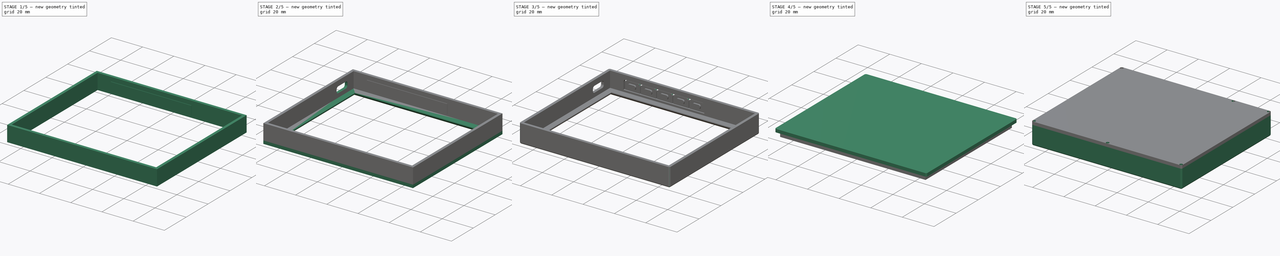
[diagram: build sequence overview — one tinted view per stage of 5, left to right]
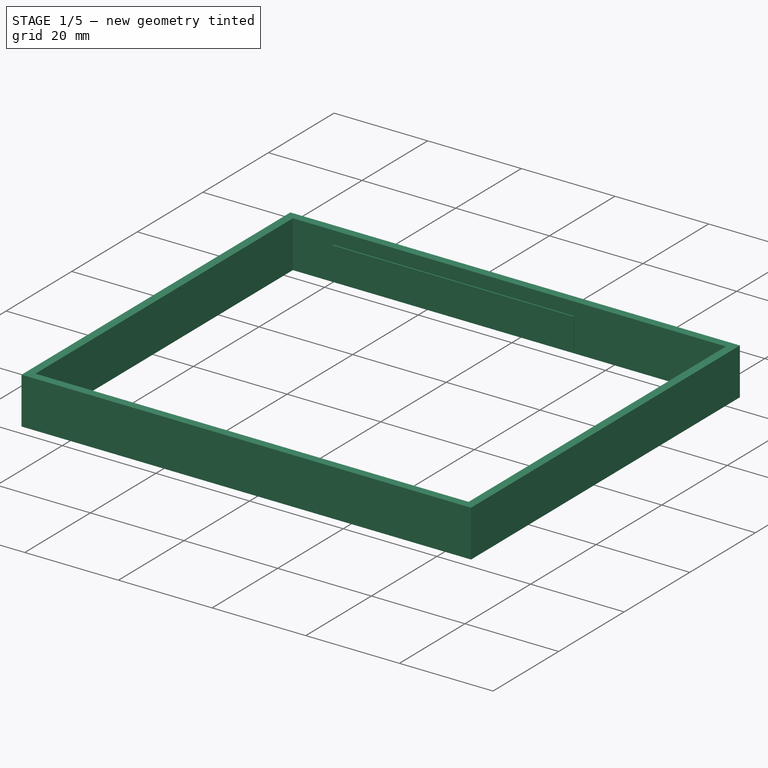
[diagram: stage 1 of 5 — iso view after this stage's code; geometry added in this stage tinted green]
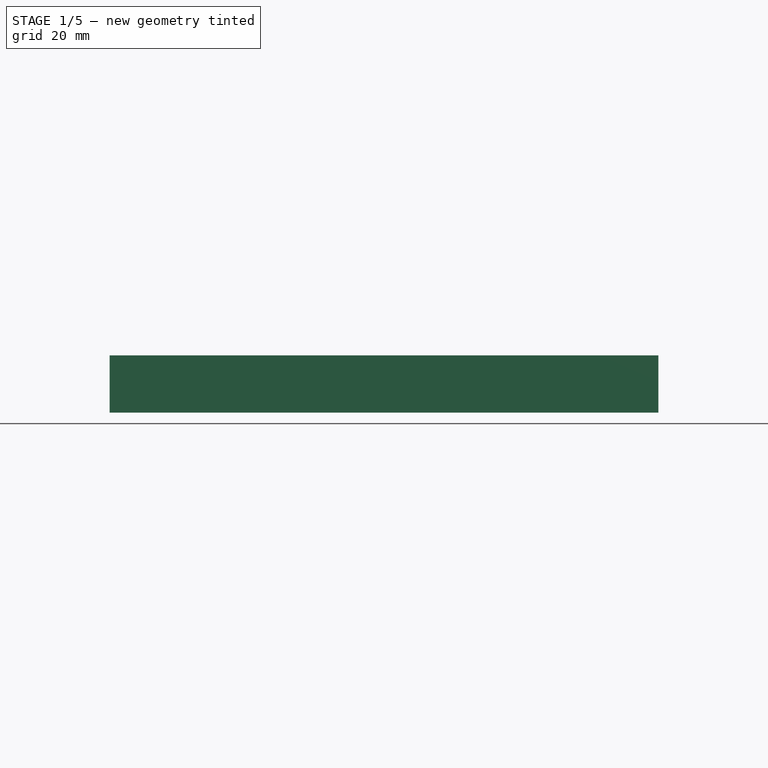
[diagram: stage 1 of 5 — front view after this stage's code; geometry added in this stage tinted green]
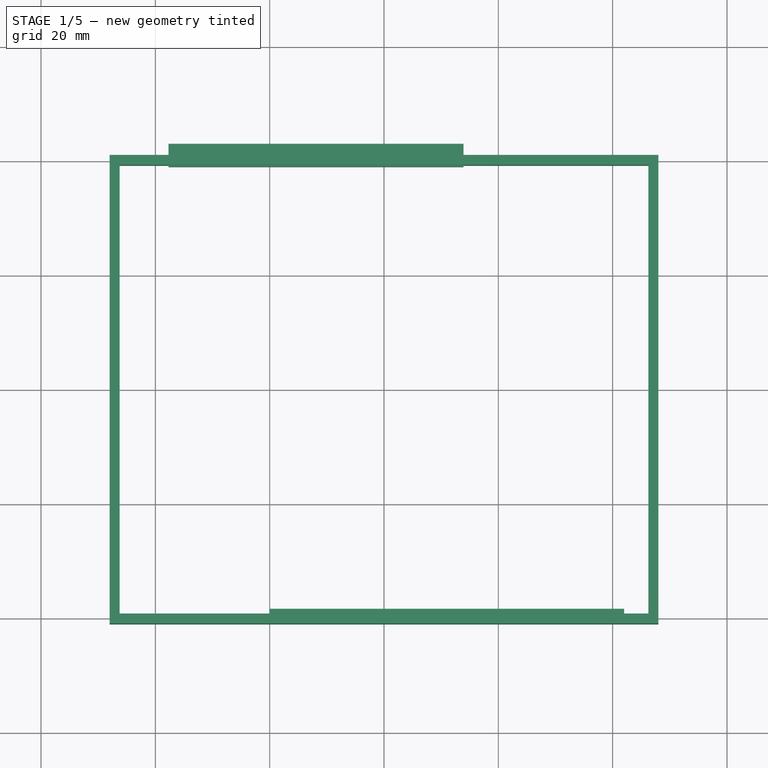
[diagram: stage 1 of 5 — top view after this stage's code; geometry added in this stage tinted green]
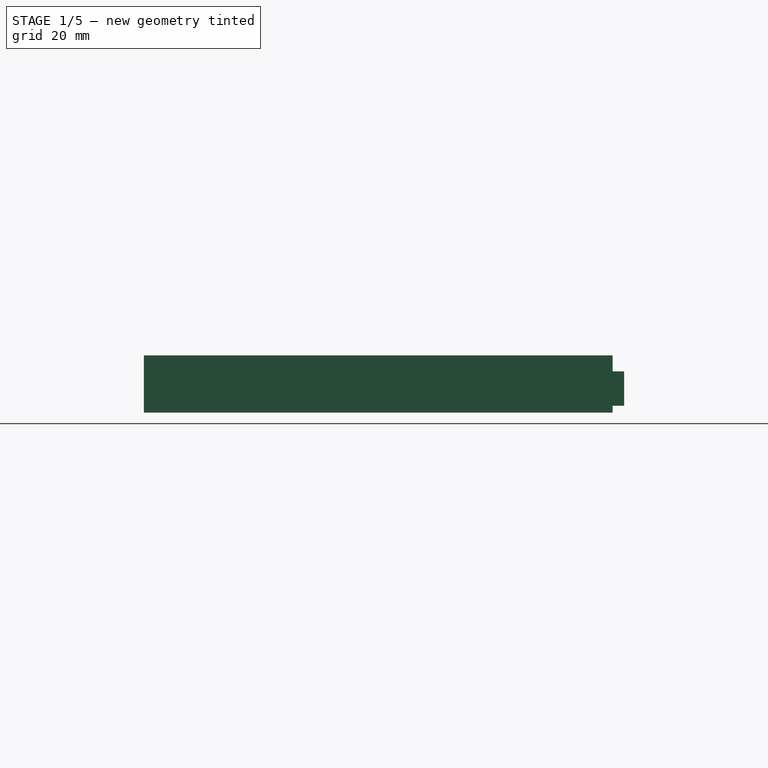
[diagram: stage 1 of 5 — right view after this stage's code; geometry added in this stage tinted green]
FCSTD DOCUMENT  (FreeCAD 0.18R4 (GitTag))
Label: shell
License: All rights reserved
LicenseURL: http://en.wikipedia.org/wiki/All_rights_reserved
objects: Part::Feature×60, App::Part×60, Sketcher::SketchObject×11, Part::Extrusion×11, Part::Cut×6, Part::Fillet×5, Part::MultiFuse×5, Part::Chamfer×1
note: 99 computed .brp shape members not serialized (recipe doc carries the construction recipe); baked Part::Feature solids carry a one-line shape summary decoded from their .brp

FEATURE [Sketcher::SketchObject] Sketch
  sketch-geometry (10):
    g0: LineSegment StartX=-46.25 StartY=39.25 StartZ=0 EndX=46.25 EndY=39.25 EndZ=0
    g1: LineSegment StartX=46.25 StartY=39.25 StartZ=0 EndX=46.25 EndY=-39.25 EndZ=0
    g2: LineSegment StartX=46.25 StartY=-39.25 StartZ=0 EndX=-46.25 EndY=-39.25 EndZ=0
    g3: LineSegment StartX=-46.25 StartY=-39.25 StartZ=0 EndX=-46.25 EndY=39.25 EndZ=0
    g4: LineSegment [constr] StartX=-46.25 StartY=39.25 StartZ=0 EndX=46.25 EndY=-39.25 EndZ=0
    g5: LineSegment [constr] StartX=46.25 StartY=39.25 StartZ=0 EndX=-46.25 EndY=-39.25 EndZ=0
    g6: LineSegment StartX=-48 StartY=41 StartZ=0 EndX=48 EndY=41 EndZ=0
    g7: LineSegment StartX=48 StartY=41 StartZ=0 EndX=48 EndY=-41 EndZ=0
    g8: LineSegment StartX=48 StartY=-41 StartZ=0 EndX=-48 EndY=-41 EndZ=0
    g9: LineSegment StartX=-48 StartY=-41 StartZ=0 EndX=-48 EndY=41 EndZ=0
  constraints (28):
    c: Coincident(g0,g1)
    c: Coincident(g1,g2)
    c: Coincident(g2,g3)
    c: Coincident(g3,g0)
    c: Horizontal(g0)
    c: Horizontal(g2)
    c: Vertical(g1)
    c: Vertical(g3)
    c: Coincident(g4,g0)
    c: Coincident(g4,g1)
    c: Coincident(g5,g0)
    c: Coincident(g5,g2)
    c: PointOnObject(g-1,g4)
    c: PointOnObject(g-1,g5)
    c: Distance(g0) = 92.5
    c: Distance(g3) = 78.5
    c: Coincident(g6,g7)
    c: Coincident(g7,g8)
    c: Coincident(g8,g9)
    c: Coincident(g9,g6)
    c: Horizontal(g6)
    c: Horizontal(g8)
    c: Vertical(g7)
    c: Vertical(g9)
    c: DistanceX(g6,g0) = 1.75
    c: DistanceY(g0,g6) = 1.75
    c: DistanceY(g7,g1) = 1.75
    c: DistanceX(g1,g7) = 1.75
FEATURE [Part::Extrusion] Extrude001  label="side"
  Base = -> Sketch
  Dir = (0,0,1)
  DirMode = 2
  FaceMakerClass = Part::FaceMakerBullseye
  LengthFwd = 10
  LengthRev = 0
  Solid = true
  Symmetric = false
FEATURE [Sketcher::SketchObject] Sketch003
  expr: Constraints[9] = 78 / 2 + 1
  sketch-geometry (4):
    g0: LineSegment StartX=-20 StartY=-38.3 StartZ=0 EndX=42 EndY=-38.3 EndZ=0
    g1: LineSegment StartX=42 StartY=-38.3 StartZ=0 EndX=42 EndY=-40 EndZ=0
    g2: LineSegment StartX=42 StartY=-40 StartZ=0 EndX=-20 EndY=-40 EndZ=0
    g3: LineSegment StartX=-20 StartY=-40 StartZ=0 EndX=-20 EndY=-38.3 EndZ=0
  constraints (12):
    c: Coincident(g0,g1)
    c: Coincident(g1,g2)
    c: Coincident(g2,g3)
    c: Coincident(g3,g0)
    c: Horizontal(g0)
    c: Horizontal(g2)
    c: Vertical(g1)
    c: Vertical(g3)
    c: DistanceY(g0,g-1) = 38.3
    c: DistanceY(g2,g-1) = 40
    c: Distance(g2) = 62
    c: DistanceX(g2,g-1) = 20
FEATURE [Part::Extrusion] Extrude003
  Base = -> Sketch003
  Dir = (0,0,1)
  DirMode = 2
  FaceMakerClass = Part::FaceMakerBullseye
  LengthFwd = 4
  LengthRev = 0
  Solid = true
  Symmetric = false
FEATURE [Sketcher::SketchObject] Sketch004  label="key-out"
  MapMode = 5
  Placement = pos=(0,39,0) rot=(0,0.707107,0.707107;3.14159rad)
  Support = -> [Part__Feature059]
  expr: Constraints[13] = 10.32 * 5
  expr: Constraints[9] = 92 / 2
  sketch-geometry (10):
    g0: LineSegment StartX=-13.9 StartY=7.2 StartZ=0 EndX=37.7 EndY=7.2 EndZ=0
    g1: LineSegment StartX=37.7 StartY=7.2 StartZ=0 EndX=37.7 EndY=1.2 EndZ=0
    g2: LineSegment [constr] StartX=37.7 StartY=1.2 StartZ=0 EndX=-13.9 EndY=1.2 EndZ=0
    g3: LineSegment StartX=-13.9 StartY=1.2 StartZ=0 EndX=-13.9 EndY=7.2 EndZ=0
    g4: GeomPoint X=46 Y=0 Z=0
    g5: LineSegment StartX=-13.9 StartY=1.2 StartZ=0 EndX=-3.58 EndY=1.2 EndZ=0
    g6: LineSegment StartX=-3.58 StartY=1.2 StartZ=0 EndX=6.74 EndY=1.2 EndZ=0
    g7: LineSegment StartX=6.74 StartY=1.2 StartZ=0 EndX=17.06 EndY=1.2 EndZ=0
    g8: LineSegment StartX=17.06 StartY=1.2 StartZ=0 EndX=27.38 EndY=1.2 EndZ=0
    g9: LineSegment StartX=27.38 StartY=1.2 StartZ=0 EndX=37.7 EndY=1.2 EndZ=0
  constraints (28):
    c: Coincident(g0,g1)
    c: Coincident(g1,g2)
    c: Coincident(g2,g3)
    c: Coincident(g3,g0)
    c: Horizontal(g0)
    c: Horizontal(g2)
    c: Vertical(g1)
    c: Vertical(g3)
    c: PointOnObject(g4,g-1)
    c: DistanceX(g-1,g4) = 46
    c: DistanceX(g1,g4) = 8.3
    c: DistanceY(g-1,g2) = 1.2
    c: Distance(g3) = 6
    c: Distance(g0) = 51.6
    c: Parallel(g5,g-1)
    c: Parallel(g6,g-1)
    c: Parallel(g7,g-1)
    c: Parallel(g8,g-1)
    c: Coincident(g5,g6)
    c: Coincident(g6,g7)
    c: Coincident(g7,g8)
    c: Coincident(g8,g9)
    c: Equal(g5,g6)
    c: Equal(g7,g5)
    c: Equal(g8,g5)
    c: Equal(g9,g5)
    c: Coincident(g5,g3)
    c: Coincident(g9,g1)
FEATURE [Sketcher::SketchObject] Sketch005  label="key-out001"
  MapMode = 5
  Placement = pos=(0,39,0) rot=(0,0.707107,0.707107;3.14159rad)
  Support = -> [Part__Feature059]
  expr: Constraints[13] = 10.32 * 5
  expr: Constraints[9] = 92 / 2
  sketch-geometry (31):
    g0: LineSegment StartX=-13.9 StartY=7.2 StartZ=0 EndX=37.7 EndY=7.2 EndZ=0
    g1: LineSegment StartX=37.7 StartY=7.2 StartZ=0 EndX=37.7 EndY=1.2 EndZ=0
    g2: LineSegment [constr] StartX=37.7 StartY=1.2 StartZ=0 EndX=-13.9 EndY=1.2 EndZ=0
    g3: LineSegment StartX=-13.9 StartY=1.2 StartZ=0 EndX=-13.9 EndY=7.2 EndZ=0
    g4: GeomPoint X=46 Y=0 Z=0
    g5: LineSegment [constr] StartX=-13.9 StartY=1.2 StartZ=0 EndX=-3.58 EndY=1.2 EndZ=0
    g6: LineSegment [constr] StartX=-3.58 StartY=1.2 StartZ=0 EndX=6.74 EndY=1.2 EndZ=0
    g7: LineSegment [constr] StartX=6.74 StartY=1.2 StartZ=0 EndX=17.06 EndY=1.2 EndZ=0
    g8: LineSegment [constr] StartX=17.06 StartY=1.2 StartZ=0 EndX=27.38 EndY=1.2 EndZ=0
    g9: LineSegment [constr] StartX=27.38 StartY=1.2 StartZ=0 EndX=37.7 EndY=1.2 EndZ=0
    g10: LineSegment StartX=-3.83 StartY=6.7 StartZ=0 EndX=-3.83 EndY=1.2 EndZ=0
    g11: LineSegment StartX=-3.33 StartY=6.7 StartZ=0 EndX=-3.33 EndY=1.2 EndZ=0
    g12: LineSegment StartX=-13.4 StartY=6.7 StartZ=0 EndX=-13.4 EndY=1.2 EndZ=0
    g13: LineSegment StartX=6.49 StartY=6.7 StartZ=0 EndX=6.49 EndY=1.2 EndZ=0
    g14: LineSegment StartX=6.99 StartY=6.7 StartZ=0 EndX=6.99 EndY=1.2 EndZ=0
    g15: LineSegment StartX=16.81 StartY=6.7 StartZ=0 EndX=16.81 EndY=1.2 EndZ=0
    g16: LineSegment StartX=17.31 StartY=6.7 StartZ=0 EndX=17.31 EndY=1.2 EndZ=0
    g17: LineSegment StartX=27.13 StartY=6.7 StartZ=0 EndX=27.13 EndY=1.2 EndZ=0
    g18: LineSegment StartX=27.63 StartY=6.7 StartZ=0 EndX=27.63 EndY=1.2 EndZ=0
    g19: LineSegment StartX=37.2 StartY=6.7 StartZ=0 EndX=37.2 EndY=1.2 EndZ=0
    g20: LineSegment StartX=-13.9 StartY=1.2 StartZ=0 EndX=-13.4 EndY=1.2 EndZ=0
    g21: LineSegment StartX=-13.4 StartY=6.7 StartZ=0 EndX=-3.83 EndY=6.7 EndZ=0
    g22: LineSegment StartX=-3.83 StartY=1.2 StartZ=0 EndX=-3.33 EndY=1.2 EndZ=0
    g23: LineSegment StartX=-3.33 StartY=6.7 StartZ=0 EndX=6.49 EndY=6.7 EndZ=0
    g24: LineSegment StartX=6.49 StartY=1.2 StartZ=0 EndX=6.99 EndY=1.2 EndZ=0
    g25: LineSegment StartX=6.99 StartY=6.7 StartZ=0 EndX=16.81 EndY=6.7 EndZ=0
    g26: LineSegment StartX=16.81 StartY=1.2 StartZ=0 EndX=17.31 EndY=1.2 EndZ=0
    g27: LineSegment StartX=17.31 StartY=6.7 StartZ=0 EndX=27.13 EndY=6.7 EndZ=0
    g28: LineSegment StartX=27.13 StartY=1.2 StartZ=0 EndX=27.63 EndY=1.2 EndZ=0
    g29: LineSegment StartX=27.63 StartY=6.7 StartZ=0 EndX=37.2 EndY=6.7 EndZ=0
    g30: LineSegment StartX=37.2 StartY=1.2 StartZ=0 EndX=37.7 EndY=1.2 EndZ=0
  constraints (90):
    c: Coincident(g0,g1)
    c: Coincident(g1,g2)
    c: Coincident(g2,g3)
    c: Coincident(g3,g0)
    c: Horizontal(g0)
    c: Horizontal(g2)
    c: Vertical(g1)
    c: Vertical(g3)
    c: PointOnObject(g4,g-1)
    c: DistanceX(g-1,g4) = 46
    c: DistanceX(g1,g4) = 8.3
    c: DistanceY(g-1,g2) = 1.2
    c: Distance(g3) = 6
    c: Distance(g0) = 51.6
    c: Parallel(g5,g-1)
    c: Parallel(g6,g-1)
    c: Parallel(g7,g-1)
    c: Parallel(g8,g-1)
    c: Coincident(g5,g6)
    c: Coincident(g6,g7)
    c: Coincident(g7,g8)
    c: Coincident(g8,g9)
    c: Equal(g5,g6)
    c: Equal(g7,g5)
    c: Equal(g8,g5)
    c: Equal(g9,g5)
    c: Coincident(g5,g3)
    c: Coincident(g9,g1)
    c: Parallel(g10,g-2)
    c: Parallel(g11,g-2)
    c: Parallel(g12,g-2)
    c: Parallel(g13,g-2)
    c: PointOnObject(g10,g5)
    c: PointOnObject(g11,g6)
    c: PointOnObject(g12,g2)
    c: DistanceX(g3,g12) = 0.5
    c: DistanceY(g12,g0) = 0.5
    c: DistanceX(g10,g5) = 0.25
    c: DistanceX(g10,g11) = 0.5
    c: DistanceY(g10,g12) = 0
    c: DistanceY(g11,g12) = 0
    c: PointOnObject(g13,g2)
    c: PointOnObject(g14,g2)
    c: DistanceX(g13,g6) = 0.25
    c: DistanceX(g13,g14) = 0.5
    c: Parallel(g14,g13)
    c: Parallel(g15,g14)
    c: DistanceY(g13,g11) = 0
    c: DistanceY(g14,g13) = 0
    c: Parallel(g16,g15)
    c: PointOnObject(g15,g2)
    c: PointOnObject(g16,g2)
    c: DistanceX(g15,g7) = 0.25
    c: DistanceX(g15,g16) = 0.5
    c: DistanceY(g15,g14) = 0
    c: DistanceY(g16,g15) = 0
    c: Parallel(g17,g1)
    c: Parallel(g18,g1)
    c: Parallel(g19,g1)
    c: PointOnObject(g17,g2)
    c: PointOnObject(g18,g2)
    c: PointOnObject(g19,g2)
    c: DistanceX(g17,g18) = 0.5
    c: DistanceX(g17,g8) = 0.25
    c: DistanceY(g17,g16) = 0
    c: DistanceY(g18,g17) = 0
    c: DistanceX(g19,g1) = 0.5
    c: DistanceY(g19,g0) = 0.5
    c: Coincident(g20,g3)
    c: Coincident(g20,g12)
    c: Coincident(g21,g10)
    c: Coincident(g21,g12)
    c: Coincident(g22,g10)
    c: Coincident(g22,g11)
    c: Coincident(g23,g11)
    c: Coincident(g23,g13)
    c: Coincident(g14,g25)
    c: Coincident(g25,g15)
    c: Coincident(g27,g16)
    c: Coincident(g27,g17)
    c: Coincident(g29,g18)
    c: Coincident(g29,g19)
    c: Coincident(g19,g30)
    c: Coincident(g1,g30)
    c: Coincident(g17,g28)
    c: Coincident(g28,g18)
    c: Coincident(g15,g26)
    c: Coincident(g16,g26)
    c: Coincident(g13,g24)
    c: Coincident(g14,g24)
FEATURE [Part::Extrusion] Extrude004
  Base = -> Sketch004
  Dir = (0,1,-2e-16)
  DirMode = 2
  FaceMakerClass = Part::FaceMakerBullseye
  LengthFwd = 1
  LengthRev = 0
  Solid = true
  Symmetric = false
FEATURE [Sketcher::SketchObject] Sketch006  label="key-out002"
  MapMode = 5
  Placement = pos=(0,39,0) rot=(0,0.707107,0.707107;3.14159rad)
  Support = -> [Part__Feature059]
  expr: Constraints[10] = 10.32 * 5
  expr: Constraints[6] = 92 / 2
  sketch-geometry (29):
    g0: LineSegment [constr] StartX=-13.9 StartY=7.2 StartZ=0 EndX=37.7 EndY=7.2 EndZ=0
    g1: LineSegment [constr] StartX=37.7 StartY=7.2 StartZ=0 EndX=37.7 EndY=1.2 EndZ=0
    g2: LineSegment [constr] StartX=-13.9 StartY=1.2 StartZ=0 EndX=-13.9 EndY=7.2 EndZ=0
    g3: GeomPoint X=46 Y=0 Z=0
    g4: LineSegment [constr] StartX=-13.9 StartY=1.2 StartZ=0 EndX=-3.58 EndY=1.2 EndZ=0
    g5: LineSegment [constr] StartX=-3.58 StartY=1.2 StartZ=0 EndX=6.74 EndY=1.2 EndZ=0
    g6: LineSegment [constr] StartX=6.74 StartY=1.2 StartZ=0 EndX=17.06 EndY=1.2 EndZ=0
    g7: LineSegment [constr] StartX=17.06 StartY=1.2 StartZ=0 EndX=27.38 EndY=1.2 EndZ=0
    g8: LineSegment [constr] StartX=27.38 StartY=1.2 StartZ=0 EndX=37.7 EndY=1.2 EndZ=0
    g9: LineSegment StartX=-11.24 StartY=5.4 StartZ=0 EndX=-6.24 EndY=5.4 EndZ=0
    g10: LineSegment StartX=-6.24 StartY=5.4 StartZ=0 EndX=-6.24 EndY=2.9 EndZ=0
    g11: LineSegment StartX=-6.24 StartY=2.9 StartZ=0 EndX=-11.24 EndY=2.9 EndZ=0
    g12: LineSegment StartX=-11.24 StartY=2.9 StartZ=0 EndX=-11.24 EndY=5.4 EndZ=0
    g13: LineSegment StartX=9.4 StartY=5.4 StartZ=0 EndX=14.4 EndY=5.4 EndZ=0
    g14: LineSegment StartX=14.4 StartY=5.4 StartZ=0 EndX=14.4 EndY=2.9 EndZ=0
    g15: LineSegment StartX=14.4 StartY=2.9 StartZ=0 EndX=9.4 EndY=2.9 EndZ=0
    g16: LineSegment StartX=9.4 StartY=2.9 StartZ=0 EndX=9.4 EndY=5.4 EndZ=0
    g17: LineSegment StartX=19.72 StartY=5.4 StartZ=0 EndX=24.72 EndY=5.4 EndZ=0
    g18: LineSegment StartX=24.72 StartY=5.4 StartZ=0 EndX=24.72 EndY=2.9 EndZ=0
    g19: LineSegment StartX=24.72 StartY=2.9 StartZ=0 EndX=19.72 EndY=2.9 EndZ=0
    g20: LineSegment StartX=19.72 StartY=2.9 StartZ=0 EndX=19.72 EndY=5.4 EndZ=0
    g21: LineSegment StartX=30.04 StartY=5.4 StartZ=0 EndX=35.04 EndY=5.4 EndZ=0
    g22: LineSegment StartX=35.04 StartY=5.4 StartZ=0 EndX=35.04 EndY=2.9 EndZ=0
    g23: LineSegment StartX=35.04 StartY=2.9 StartZ=0 EndX=30.04 EndY=2.9 EndZ=0
    g24: LineSegment StartX=30.04 StartY=2.9 StartZ=0 EndX=30.04 EndY=5.4 EndZ=0
    g25: LineSegment StartX=-0.92 StartY=5.4 StartZ=0 EndX=4.08 EndY=5.4 EndZ=0
    g26: LineSegment StartX=4.08 StartY=5.4 StartZ=0 EndX=4.08 EndY=2.9 EndZ=0
    g27: LineSegment StartX=4.08 StartY=2.9 StartZ=0 EndX=-0.92 EndY=2.9 EndZ=0
    g28: LineSegment StartX=-0.92 StartY=2.9 StartZ=0 EndX=-0.92 EndY=5.4 EndZ=0
  constraints (86):
    c: Coincident(g0,g1)
    c: Coincident(g2,g0)
    c: Horizontal(g0)
    c: Vertical(g1)
    c: Vertical(g2)
    c: PointOnObject(g3,g-1)
    c: DistanceX(g-1,g3) = 46
    c: DistanceX(g1,g3) = 8.3
    c: DistanceY(g-1,g2) = 1.2
    c: Distance(g2) = 6
    c: Distance(g0) = 51.6
    c: Parallel(g4,g-1)
    c: Parallel(g5,g-1)
    c: Parallel(g6,g-1)
    c: Parallel(g7,g-1)
    c: Coincident(g7,g8)
    c: Equal(g4,g5)
    c: Equal(g6,g4)
    c: Equal(g7,g4)
    c: Equal(g8,g4)
    c: Coincident(g4,g2)
    c: Coincident(g8,g1)
    c: Coincident(g6,g7)
    c: Coincident(g5,g6)
    c: Coincident(g5,g4)
    c: Parallel(g8,g-1)
    c: Coincident(g9,g10)
    c: Coincident(g10,g11)
    c: Coincident(g11,g12)
    c: Coincident(g12,g9)
    c: Horizontal(g9)
    c: Horizontal(g11)
    c: Vertical(g10)
    c: Vertical(g12)
    c: Distance(g10) = 2.5
    c: Distance(g9) = 5
    c: Coincident(g13,g14)
    c: Coincident(g14,g15)
    c: Coincident(g15,g16)
    c: Coincident(g16,g13)
    c: Horizontal(g13)
    c: Horizontal(g15)
    c: Vertical(g14)
    c: Vertical(g16)
    c: Equal(g10,g14) = 2.5
    c: Equal(g9,g13) = 5
    c: Coincident(g17,g18)
    c: Coincident(g18,g19)
    c: Coincident(g19,g20)
    c: Coincident(g20,g17)
    c: Horizontal(g17)
    c: Horizontal(g19)
    c: Vertical(g18)
    c: Vertical(g20)
    c: Equal(g10,g18) = 2.5
    c: Equal(g9,g17) = 5
    c: Coincident(g21,g22)
    c: Coincident(g22,g23)
    c: Coincident(g23,g24)
    c: Coincident(g24,g21)
    c: Horizontal(g21)
    c: Horizontal(g23)
    c: Vertical(g22)
    c: Vertical(g24)
    c: Equal(g10,g22) = 2.5
    c: Equal(g9,g21) = 5
    c: Coincident(g25,g26)
    c: Coincident(g26,g27)
    c: Coincident(g27,g28)
    c: Coincident(g28,g25)
    c: Horizontal(g25)
    c: Horizontal(g27)
    c: Vertical(g26)
    c: Vertical(g28)
    c: Equal(g10,g26) = 2.5
    c: Equal(g9,g25) = 5
    c: DistanceY(g2,g11) = 1.7
    c: DistanceY(g4,g27) = 1.7
    c: DistanceY(g5,g15) = 1.7
    c: DistanceY(g6,g19) = 1.7
    c: DistanceY(g7,g23) = 1.7
    c: DistanceX(g2,g11) = 2.66
    c: DistanceX(g4,g27) = 2.66
    c: DistanceX(g5,g15) = 2.66
    c: DistanceX(g6,g19) = 2.66
    c: DistanceX(g7,g23) = 2.66
FEATURE [Part::Extrusion] Extrude005
  Base = -> Sketch005
  Dir = (0,1,-2e-16)
  DirMode = 2
  FaceMakerClass = Part::FaceMakerBullseye
  LengthFwd = 4
  LengthRev = 0
  Solid = true
  Symmetric = false
FEATURE [Part::Extrusion] Extrude007  label="keys"
  Base = -> Sketch006
  Dir = (0,1,-2e-16)
  DirMode = 2
  FaceMakerClass = Part::FaceMakerBullseye
  LengthFwd = 3
  LengthRev = 0
  Solid = true
  Symmetric = false
FEATURE [Part::Fillet] Fillet003
  Base = -> Extrude007
  Edges = 40 edges r=1: [Edge1,Edge2,Edge4,Edge5,Edge7,Edge8,Edge10,Edge12,Edge13,Edge14,Edge16,Edge17,Edge19,Edge20,Edge22,Edge24,Edge25,Edge26,Edge28,Edge29,Edge31,Edge32,Edge34,Edge36,Edge37,Edge38,Edge40,Edge41,Edge43,Edge44,Edge46,Edge48,Edge49,Edge50,Edge52,Edge53,Edge55,Edge56,Edge58,Edge60]
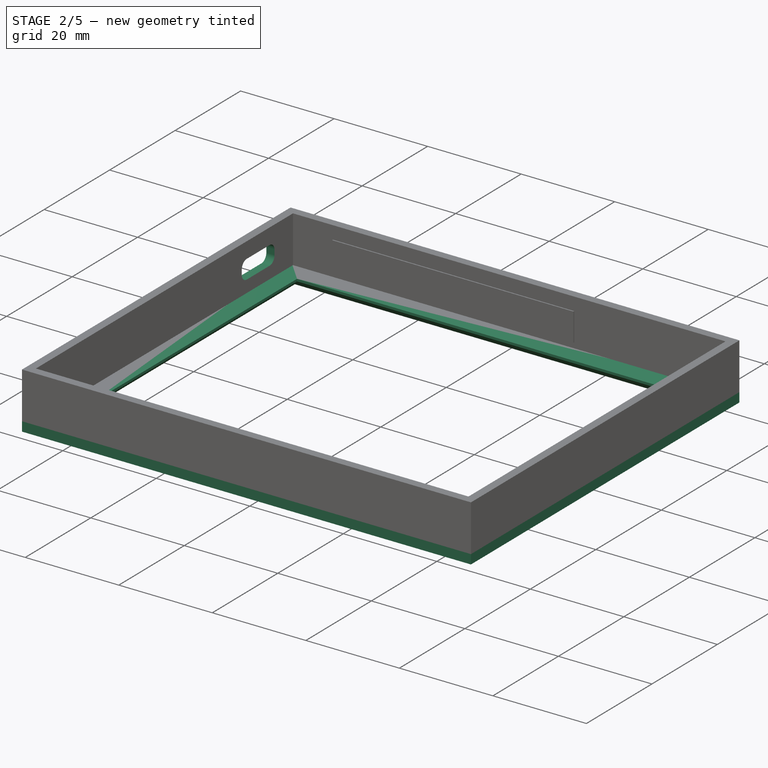
[diagram: stage 2 of 5 — iso view after this stage's code; geometry added in this stage tinted green]
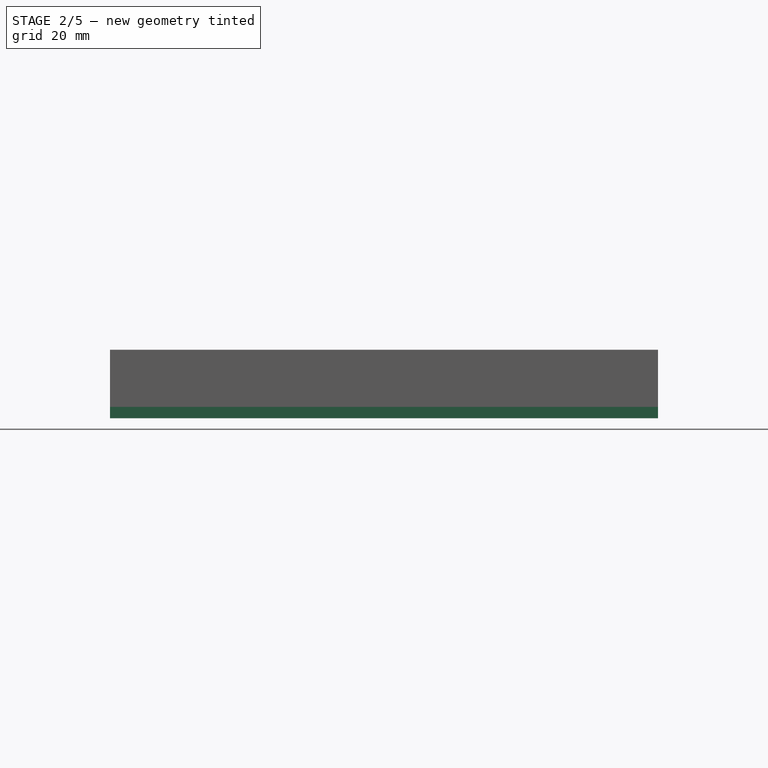
[diagram: stage 2 of 5 — front view after this stage's code; geometry added in this stage tinted green]
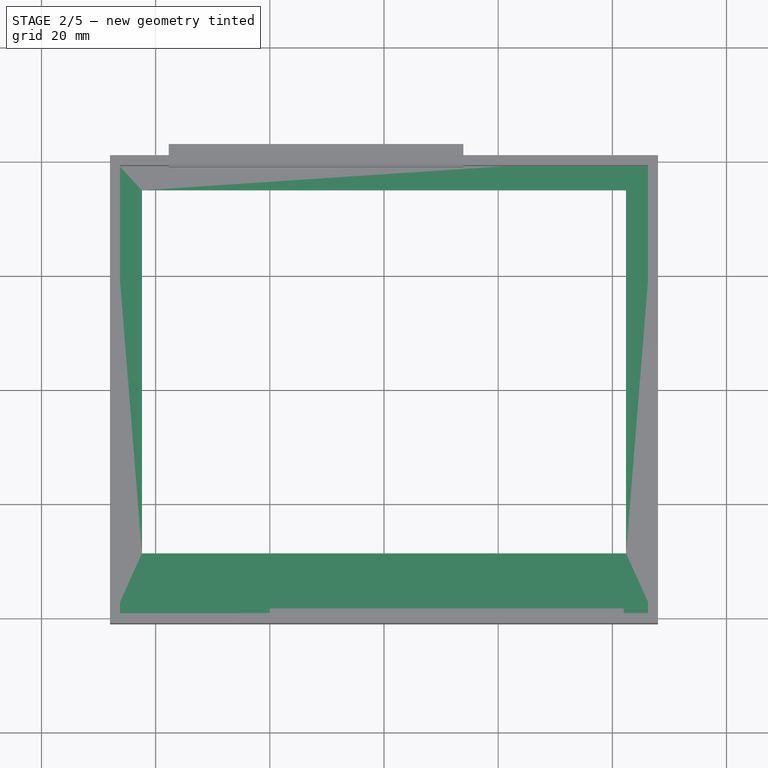
[diagram: stage 2 of 5 — top view after this stage's code; geometry added in this stage tinted green]
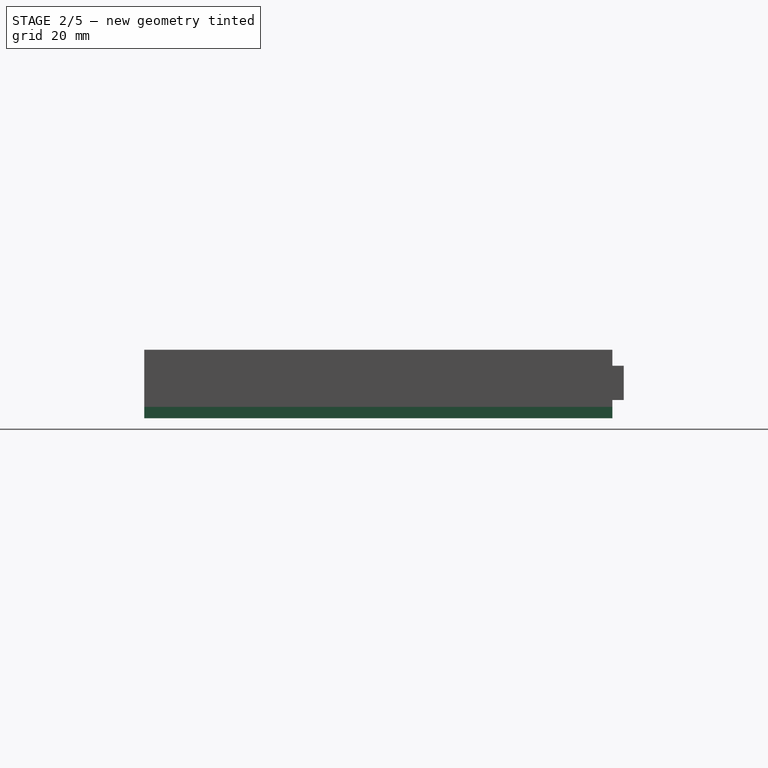
[diagram: stage 2 of 5 — right view after this stage's code; geometry added in this stage tinted green]
FEATURE [Part::Feature] Part__Feature  label="SOLID"
  shape: bbox 2.8 x 2.9 x 1.55 mm, 109 faces (baked)
FEATURE [App::Part] SOT_23_5  label="SOT-23-5"
  Group = -> [Part__Feature]
  Origin = -> Origin
  Placement = pos=(-34.2,20.25,1.65) rot=(0,0,1;3.14159rad)
FEATURE [Part::Feature] Part__Feature001  label="SOLID001"
  shape: bbox 2.8 x 2.9 x 1.55 mm, 124 faces (baked)
FEATURE [App::Part] SOT_23_6  label="SOT-23-6"
  Group = -> [Part__Feature001]
  Origin = -> Origin001
  Placement = pos=(-23.05,12,1.65) rot=(0,0,1;0rad)
FEATURE [Part::Feature] Part__Feature002  label="SOLID002"
  shape: bbox 1 x 0.5 x 0.35 mm, 26 faces (baked)
FEATURE [App::Part] R_0402_1005Metric
  Group = -> [Part__Feature002]
  Origin = -> Origin002
  Placement = pos=(40.585,34.875,1.65) rot=(0,0,1;0rad)
FEATURE [Part::Feature] Part__Feature003  label="SOLID003"
  shape: bbox 1 x 0.5 x 0.35 mm, 26 faces (baked)
FEATURE [App::Part] R_0402_1005Metric001
  Group = -> [Part__Feature003]
  Origin = -> Origin003
  Placement = pos=(-35.79,17.5,1.65) rot=(0,0,1;3.14159rad)
FEATURE [Part::Feature] Part__Feature004  label="SOLID004"
  shape: bbox 1 x 0.5 x 0.35 mm, 26 faces (baked)
FEATURE [App::Part] R_0402_1005Metric002
  Group = -> [Part__Feature004]
  Origin = -> Origin004
  Placement = pos=(33.89,36.875,1.65) rot=(0,0,1;0rad)
FEATURE [Part::Feature] Part__Feature005  label="SOLID005"
  shape: bbox 1 x 0.5 x 0.35 mm, 26 faces (baked)
FEATURE [App::Part] R_0402_1005Metric003
  Group = -> [Part__Feature005]
  Origin = -> Origin005
  Placement = pos=(32.565,34.875,1.65) rot=(0,0,1;0rad)
FEATURE [Part::Feature] Part__Feature006  label="SOLID006"
  shape: bbox 1 x 0.5 x 0.35 mm, 26 faces (baked)
FEATURE [App::Part] R_0402_1005Metric004
  Group = -> [Part__Feature006]
  Origin = -> Origin006
  Placement = pos=(38.575,-14.335,1.65) rot=(0,0,1;1.5708rad)
FEATURE [Part::Feature] Part__Feature007  label="SOLID007"
  shape: bbox 1 x 0.5 x 0.35 mm, 26 faces (baked)
FEATURE [App::Part] R_0402_1005Metric005
  Group = -> [Part__Feature007]
  Origin = -> Origin007
  Placement = pos=(41.915,-16.5,1.65) rot=(0,0,1;0rad)
FEATURE [Part::Feature] Part__Feature008  label="SOLID008"
  shape: bbox 1 x 0.5 x 0.35 mm, 26 faces (baked)
FEATURE [App::Part] R_0402_1005Metric006
  Group = -> [Part__Feature008]
  Origin = -> Origin008
  Placement = pos=(-25.26,8.55,1.65) rot=(0,0,1;3.14159rad)
FEATURE [Part::Feature] Part__Feature009  label="SOLID009"
  shape: bbox 1 x 0.5 x 0.35 mm, 26 faces (baked)
FEATURE [App::Part] R_0402_1005Metric007
  Group = -> [Part__Feature009]
  Origin = -> Origin009
  Placement = pos=(-35.6,26.3,1.65) rot=(0,0,1;1.5708rad)
FEATURE [Part::Feature] Part__Feature010  label="SOLID010"
  shape: bbox 1 x 0.5 x 0.35 mm, 26 faces (baked)
FEATURE [App::Part] R_0402_1005Metric008
  Group = -> [Part__Feature010]
  Origin = -> Origin010
  Placement = pos=(-35.65,30.4,1.65) rot=(0,0,-1;1.5708rad)
FEATURE [Part::Feature] Part__Feature011  label="SOLID011"
  shape: bbox 1 x 0.5 x 0.35 mm, 26 faces (baked)
FEATURE [App::Part] R_0402_1005Metric009
  Group = -> [Part__Feature011]
  Origin = -> Origin011
  Placement = pos=(-25.235,4.875,1.65) rot=(0,0,1;0rad)
FEATURE [Part::Feature] Part__Feature012  label="SOLID012"
  shape: bbox 1 x 0.5 x 0.35 mm, 26 faces (baked)
FEATURE [App::Part] R_0402_1005Metric010
  Group = -> [Part__Feature012]
  Origin = -> Origin012
  Placement = pos=(-25.24,6.15,1.65) rot=(0,0,1;0rad)
FEATURE [Part::Feature] Part__Feature013  label="SOLID013"
  shape: bbox 1 x 0.5 x 0.35 mm, 26 faces (baked)
FEATURE [App::Part] R_0402_1005Metric011
  Group = -> [Part__Feature013]
  Origin = -> Origin013
  Placement = pos=(-25.24,7.4,1.65) rot=(0,0,1;0rad)
FEATURE [Part::Feature] Part__Feature014  label="SOLID014"
  shape: bbox 1 x 0.5 x 0.35 mm, 26 faces (baked)
FEATURE [App::Part] R_0402_1005Metric012
  Group = -> [Part__Feature014]
  Origin = -> Origin014
  Placement = pos=(-25.19,3.6,1.65) rot=(0,0,1;3.14159rad)
FEATURE [Part::Feature] Part__Feature015  label="SOLID015"
  shape: bbox 2.5 x 3 x 1.2 mm, 76 faces (baked)
FEATURE [App::Part] SOT_23  label="SOT-23"
  Group = -> [Part__Feature015]
  Origin = -> Origin015
  Placement = pos=(36.725,35.875,1.65) rot=(0,0,1;1.5708rad)
FEATURE [Part::Feature] Part__Feature016  label="SOLID016"
  shape: bbox 2 x 2 x 1.05 mm, 76 faces (baked)
FEATURE [App::Part] SOT_323_SC_70  label="SOT-323_SC-70"
  Group = -> [Part__Feature016]
  Origin = -> Origin016
  Placement = pos=(39.225,-17.55,1.65) rot=(0,0,-1;1.5708rad)
FEATURE [Part::Feature] Part__Feature017  label="COMPOUND"
  shape: bbox 4.041 x 4.111 x 1.805 mm, 136 faces, 5 solids (baked)
FEATURE [App::Part] L_Bourns_SRN4018  label="L_Bourns-SRN4018"
  Group = -> [Part__Feature017]
  Origin = -> Origin017
  Placement = pos=(37.7,-22.175,1.65) rot=(0,0,1;0rad)
FEATURE [Part::Feature] Part__Feature018  label="SOLID017"
  shape: bbox 1 x 0.5 x 0.35 mm, 26 faces (baked)
FEATURE [App::Part] R_0402_1005Metric013
  Group = -> [Part__Feature018]
  Origin = -> Origin018
  Placement = pos=(19.13,2.71,1.65) rot=(0,0,-1;1.5708rad)
FEATURE [Part::Feature] Part__Feature019  label="SOLID018"
  shape: bbox 1 x 0.5 x 0.35 mm, 26 faces (baked)
FEATURE [App::Part] R_0402_1005Metric014
  Group = -> [Part__Feature019]
  Origin = -> Origin019
  Placement = pos=(20.1,2.71,1.65) rot=(0,0,-1;1.5708rad)
FEATURE [Part::Feature] Part__Feature020  label="SOLID019"
  shape: bbox 1 x 0.5 x 0.35 mm, 26 faces (baked)
FEATURE [App::Part] R_0402_1005Metric015
  Group = -> [Part__Feature020]
  Origin = -> Origin020
  Placement = pos=(-30.55,-8.35,1.65) rot=(0,0,1;3.14159rad)
FEATURE [Part::Feature] Part__Feature021  label="SOLID020"
  shape: bbox 1 x 0.5 x 0.35 mm, 26 faces (baked)
FEATURE [App::Part] R_0402_1005Metric016
  Group = -> [Part__Feature021]
  Origin = -> Origin021
  Placement = pos=(-30.55,-9.55,1.65) rot=(0,0,1;3.14159rad)
FEATURE [Part::Feature] Part__Feature022  label="SOLID021"
  shape: bbox 8.94 x 7.63 x 4.25 mm, 136 faces (baked)
FEATURE [App::Part] USB_C_Receptacle_Palconn_UTC16_G  label="USB_C_Receptacle_Palconn_UTC16-G"
  Group = -> [Part__Feature022]
  Origin = -> Origin022
  Placement = pos=(-42.05,28.6,1.65) rot=(0,0,-1;1.5708rad)
FEATURE [Part::Feature] Part__Feature023  label="SOLID022"
  shape: bbox 1 x 0.5 x 0.5 mm, 50 faces (baked)
FEATURE [App::Part] LED_0402_1005Metric
  Group = -> [Part__Feature023]
  Origin = -> Origin023
  Placement = pos=(31.885,36.875,1.65) rot=(0,0,1;3.14159rad)
FEATURE [Part::Feature] Part__Feature024  label="SOLID023"
  shape: bbox 2.5 x 1.25 x 1.1 mm, 67 faces (baked)
FEATURE [App::Part] D_SOD_323  label="D_SOD-323"
  Group = -> [Part__Feature024]
  Origin = -> Origin024
  Placement = pos=(24.15,-16.35,1.65) rot=(0,0,1;1.5708rad)
FEATURE [Part::Feature] Part__Feature025  label="SOLID024"
  shape: bbox 3.8 x 1.6 x 1.25 mm, 67 faces (baked)
FEATURE [App::Part] D_SOD_123  label="D_SOD-123"
  Group = -> [Part__Feature025]
  Origin = -> Origin025
  Placement = pos=(34.2,-18.55,1.65) rot=(0,0,1;0rad)
FEATURE [Part::Feature] Part__Feature026  label="SOLID025"
  shape: bbox 3.8 x 1.6 x 1.25 mm, 67 faces (baked)
FEATURE [App::Part] D_SOD_123001  label="D_SOD-324"
  Group = -> [Part__Feature026]
  Origin = -> Origin026
  Placement = pos=(42.275,-22.175,1.65) rot=(0,0,1;1.5708rad)
FEATURE [Part::Feature] Part__Feature027  label="SOLID026"
  shape: bbox 3.8 x 1.6 x 1.25 mm, 67 faces (baked)
FEATURE [App::Part] D_SOD_123002  label="D_SOD-325"
  Group = -> [Part__Feature027]
  Origin = -> Origin027
  Placement = pos=(34.2,-16.1,1.65) rot=(0,0,1;3.14159rad)
FEATURE [Part::Feature] Part__Feature028  label="SOLID027"
  shape: bbox 2.5 x 1.25 x 1.1 mm, 67 faces (baked)
FEATURE [App::Part] D_SOD_323001  label="D_SOD-326"
  Group = -> [Part__Feature028]
  Origin = -> Origin028
  Placement = pos=(-28.75,19.3,1.65) rot=(0,0,1;0rad)
FEATURE [Part::Feature] Part__Feature029  label="SOLID028"
  shape: bbox 1 x 0.5 x 0.5 mm, 28 faces (baked)
FEATURE [App::Part] C_0402_1005Metric
  Group = -> [Part__Feature029]
  Origin = -> Origin029
  Placement = pos=(26.15,-17,1.65) rot=(0,0,-1;1.5708rad)
FEATURE [Part::Feature] Part__Feature030  label="SOLID029"
  shape: bbox 1 x 0.5 x 0.5 mm, 28 faces (baked)
FEATURE [App::Part] C_0402_1005Metric001
  Group = -> [Part__Feature030]
  Origin = -> Origin030
  Placement = pos=(16.575,-16.97,1.65) rot=(0,0,-1;1.5708rad)
FEATURE [Part::Feature] Part__Feature031  label="SOLID030"
  shape: bbox 1 x 0.5 x 0.5 mm, 28 faces (baked)
FEATURE [App::Part] C_0402_1005Metric002
  Group = -> [Part__Feature031]
  Origin = -> Origin031
  Placement = pos=(17.65,-16.97,1.65) rot=(0,0,-1;1.5708rad)
FEATURE [Part::Feature] Part__Feature032  label="SOLID031"
  shape: bbox 1 x 0.5 x 0.5 mm, 28 faces (baked)
FEATURE [App::Part] C_0402_1005Metric003
  Group = -> [Part__Feature032]
  Origin = -> Origin032
  Placement = pos=(19.15,-14.97,1.65) rot=(0,0,-1;1.5708rad)
FEATURE [Part::Feature] Part__Feature033  label="SOLID032"
  shape: bbox 1 x 0.5 x 0.5 mm, 28 faces (baked)
FEATURE [App::Part] C_0402_1005Metric004
  Group = -> [Part__Feature033]
  Origin = -> Origin033
  Placement = pos=(26.65,-15.095,1.65) rot=(0,0,-1;1.5708rad)
FEATURE [Part::Feature] Part__Feature034  label="SOLID033"
  shape: bbox 1 x 0.5 x 0.5 mm, 28 faces (baked)
FEATURE [App::Part] C_0402_1005Metric005
  Group = -> [Part__Feature034]
  Origin = -> Origin034
  Placement = pos=(19.725,-16.97,1.65) rot=(0,0,-1;1.5708rad)
FEATURE [Part::Feature] Part__Feature035  label="SOLID034"
  shape: bbox 1 x 0.5 x 0.5 mm, 28 faces (baked)
FEATURE [App::Part] C_0402_1005Metric006
  Group = -> [Part__Feature035]
  Origin = -> Origin035
  Placement = pos=(20.67,-18.75,1.65) rot=(0,0,1;0rad)
FEATURE [Part::Feature] Part__Feature036  label="SOLID035"
  shape: bbox 1.6 x 0.8 x 0.8 mm, 28 faces (baked)
FEATURE [App::Part] C_0603_1608Metric
  Group = -> [Part__Feature036]
  Origin = -> Origin036
  Placement = pos=(24.7,35.7,1.65) rot=(0,0,1;1.5708rad)
FEATURE [Part::Feature] Part__Feature037  label="SOLID036"
  shape: bbox 1.6 x 0.8 x 0.8 mm, 28 faces (baked)
FEATURE [App::Part] C_0603_1608Metric001
  Group = -> [Part__Feature037]
  Origin = -> Origin037
  Placement = pos=(26.3,35.725,1.65) rot=(0,0,1;1.5708rad)
FEATURE [Part::Feature] Part__Feature038  label="SOLID037"
  shape: bbox 1 x 0.5 x 0.5 mm, 28 faces (baked)
FEATURE [App::Part] C_0402_1005Metric007
  Group = -> [Part__Feature038]
  Origin = -> Origin038
  Placement = pos=(27.8,35.45,1.65) rot=(0,0,1;1.5708rad)
FEATURE [Part::Feature] Part__Feature039  label="SOLID038"
  shape: bbox 1.6 x 0.85 x 0.85 mm, 40 faces (baked)
FEATURE [App::Part] CP_EIA_1608_10_AVX_L  label="CP_EIA-1608-10_AVX-L"
  Group = -> [Part__Feature039]
  Origin = -> Origin039
  Placement = pos=(22.9,35.75,1.65) rot=(0,0,1;1.5708rad)
FEATURE [Part::Feature] Part__Feature040  label="SOLID039"
  shape: bbox 1 x 0.5 x 0.5 mm, 28 faces (baked)
FEATURE [App::Part] C_0402_1005Metric008
  Group = -> [Part__Feature040]
  Origin = -> Origin040
  Placement = pos=(17.15,-14.97,1.65) rot=(0,0,-1;1.5708rad)
FEATURE [Part::Feature] Part__Feature041  label="SOLID040"
  shape: bbox 1 x 0.5 x 0.5 mm, 28 faces (baked)
FEATURE [App::Part] C_0402_1005Metric009
  Group = -> [Part__Feature041]
  Origin = -> Origin041
  Placement = pos=(-31.05,20.7,1.65) rot=(0,0,-1;1.5708rad)
FEATURE [Part::Feature] Part__Feature042  label="SOLID041"
  shape: bbox 1 x 0.5 x 0.5 mm, 28 faces (baked)
FEATURE [App::Part] C_0402_1005Metric010
  Group = -> [Part__Feature042]
  Origin = -> Origin042
  Placement = pos=(18.65,-16.97,1.65) rot=(0,0,-1;1.5708rad)
FEATURE [Part::Feature] Part__Feature043  label="SOLID042"
  shape: bbox 1 x 0.5 x 0.5 mm, 28 faces (baked)
FEATURE [App::Part] C_0402_1005Metric011
  Group = -> [Part__Feature043]
  Origin = -> Origin043
  Placement = pos=(-35.78,22.95,1.65) rot=(0,0,1;0rad)
FEATURE [Part::Feature] Part__Feature044  label="SOLID043"
  shape: bbox 1 x 0.5 x 0.5 mm, 28 faces (baked)
FEATURE [App::Part] C_0402_1005Metric012
  Group = -> [Part__Feature044]
  Origin = -> Origin044
  Placement = pos=(32.55,-20.895,1.65) rot=(0,0,-1;1.5708rad)
FEATURE [Part::Feature] Part__Feature045  label="SOLID044"
  shape: bbox 1 x 0.5 x 0.5 mm, 28 faces (baked)
FEATURE [App::Part] C_0402_1005Metric013
  Group = -> [Part__Feature045]
  Origin = -> Origin045
  Placement = pos=(41.845,-18.55,1.65) rot=(0,0,1;0rad)
FEATURE [Part::Feature] Part__Feature046  label="SOLID045"
  shape: bbox 1 x 0.5 x 0.5 mm, 28 faces (baked)
FEATURE [App::Part] C_0402_1005Metric014
  Group = -> [Part__Feature046]
  Origin = -> Origin046
  Placement = pos=(35.705,-25.625,1.65) rot=(0,0,1;3.14159rad)
FEATURE [Part::Feature] Part__Feature047  label="SOLID046"
  shape: bbox 1 x 0.5 x 0.5 mm, 28 faces (baked)
FEATURE [App::Part] C_0402_1005Metric015
  Group = -> [Part__Feature047]
  Origin = -> Origin047
  Placement = pos=(-40.29,-11.95,1.65) rot=(0,0,1;0rad)
FEATURE [Part::Feature] Part__Feature048  label="SOLID047"
  shape: bbox 1 x 0.5 x 0.5 mm, 28 faces (baked)
FEATURE [App::Part] C_0402_1005Metric016
  Group = -> [Part__Feature048]
  Origin = -> Origin048
  Placement = pos=(-22.3,8.07,1.65) rot=(0,0,1;1.5708rad)
FEATURE [Part::Feature] Part__Feature049  label="SOLID048"
  shape: bbox 1 x 0.5 x 0.5 mm, 28 faces (baked)
FEATURE [App::Part] C_0402_1005Metric017
  Group = -> [Part__Feature049]
  Origin = -> Origin049
  Placement = pos=(21.19,1.72,1.65) rot=(0,0,-1;1.5708rad)
FEATURE [Part::Feature] Part__Feature050  label="SOLID049"
  shape: bbox 1 x 0.5 x 0.5 mm, 28 faces (baked)
FEATURE [App::Part] C_0402_1005Metric018
  Group = -> [Part__Feature050]
  Origin = -> Origin050
  Placement = pos=(-23.15,6.15,1.65) rot=(0,0,1;0rad)
FEATURE [Part::Feature] Part__Feature051  label="SOLID050"
  shape: bbox 1 x 0.5 x 0.5 mm, 28 faces (baked)
FEATURE [App::Part] C_0402_1005Metric019
  Group = -> [Part__Feature051]
  Origin = -> Origin051
  Placement = pos=(-40.27,-5.62,1.65) rot=(0,0,1;0rad)
FEATURE [Part::Feature] Part__Feature052  label="SOLID051"
  shape: bbox 1 x 0.5 x 0.5 mm, 28 faces (baked)
FEATURE [App::Part] C_0402_1005Metric020
  Group = -> [Part__Feature052]
  Origin = -> Origin052
  Placement = pos=(-25.95,10.43,1.65) rot=(0,0,-1;1.5708rad)
FEATURE [Part::Feature] Part__Feature053  label="SOLID052"
  shape: bbox 1 x 0.5 x 0.5 mm, 28 faces (baked)
FEATURE [App::Part] C_0402_1005Metric021
  Group = -> [Part__Feature053]
  Origin = -> Origin053
  Placement = pos=(-23.145,4.875,1.65) rot=(0,0,1;0rad)
FEATURE [Part::Feature] Part__Feature054  label="SOLID053"
  shape: bbox 1 x 0.5 x 0.5 mm, 28 faces (baked)
FEATURE [App::Part] C_0402_1005Metric022
  Group = -> [Part__Feature054]
  Origin = -> Origin054
  Placement = pos=(18.01,1.71,1.65) rot=(0,0,-1;1.5708rad)
FEATURE [Part::Feature] Part__Feature055  label="SOLID054"
  shape: bbox 1 x 0.5 x 0.5 mm, 28 faces (baked)
FEATURE [App::Part] C_0402_1005Metric023
  Group = -> [Part__Feature055]
  Origin = -> Origin055
  Placement = pos=(-23.4,8.07,1.65) rot=(0,0,1;1.5708rad)
FEATURE [Part::Feature] Part__Feature056  label="SOLID055"
  shape: bbox 1 x 0.5 x 0.5 mm, 28 faces (baked)
FEATURE [App::Part] C_0402_1005Metric024
  Group = -> [Part__Feature056]
  Origin = -> Origin056
  Placement = pos=(-31,-11.11,1.65) rot=(0,0,-1;1.5708rad)
FEATURE [Part::Feature] Part__Feature057  label="SOLID056"
  shape: bbox 1 x 0.5 x 0.5 mm, 28 faces (baked)
FEATURE [App::Part] C_0402_1005Metric025
  Group = -> [Part__Feature057]
  Origin = -> Origin057
  Placement = pos=(-31.04,-6.79,1.65) rot=(0,0,1;1.5708rad)
FEATURE [Part::Feature] Part__Feature058  label="SOLID057"
  shape: bbox 1 x 0.5 x 0.5 mm, 28 faces (baked)
FEATURE [App::Part] C_0402_1005Metric026
  Group = -> [Part__Feature058]
  Origin = -> Origin058
  Placement = pos=(19.62,4.57,1.65) rot=(0,0,1;3.14159rad)
FEATURE [Part::Feature] Part__Feature059  label="COMPOUND001"
  shape: bbox 92 x 78 x 1.6 mm, 40 faces (baked)
FEATURE [App::Part] Open_CASCADE_STEP_translator_6_9_1  label="Open CASCADE STEP translator 6.9 1"
  Group = -> [SOT_23_5,SOT_23_6,R_0402_1005Metric,R_0402_1005Metric001,R_0402_1005Metric002,R_0402_1005Metric003,R_0402_1005Metric004,R_0402_1005Metric005,R_0402_1005Metric006,R_0402_1005Metric007,R_0402_1005Metric008,R_0402_1005Metric009,R_0402_1005Metric010,R_0402_1005Metric011,R_0402_1005Metric012,SOT_23,SOT_323_SC_70,L_Bourns_SRN4018,R_0402_1005Metric013,R_0402_1005Metric014,R_0402_1005Metric015,+39 more]
  Origin = -> Origin059
FEATURE [Sketcher::SketchObject] Sketch001
  MapMode = 5
  Placement = pos=(0,0,0) rot=(1,0,0;3.14159rad)
  Support = -> [Part__Feature059]
  sketch-geometry (14):
    g0: LineSegment [constr] StartX=-46 StartY=39 StartZ=0 EndX=46 EndY=39 EndZ=0
    g1: LineSegment [constr] StartX=46 StartY=39 StartZ=0 EndX=46 EndY=-39 EndZ=0
    g2: LineSegment [constr] StartX=46 StartY=-39 StartZ=0 EndX=-46 EndY=-39 EndZ=0
    g3: LineSegment [constr] StartX=-46 StartY=-39 StartZ=0 EndX=-46 EndY=39 EndZ=0
    g4: LineSegment [constr] StartX=46 StartY=39 StartZ=0 EndX=-46 EndY=-39 EndZ=0
    g5: LineSegment [constr] StartX=-46 StartY=39 StartZ=0 EndX=46 EndY=-39 EndZ=0
    g6: LineSegment StartX=-42.4 StartY=28.6 StartZ=0 EndX=42.4 EndY=28.6 EndZ=0
    g7: LineSegment StartX=42.4 StartY=28.6 StartZ=0 EndX=42.4 EndY=-35 EndZ=0
    g8: LineSegment StartX=42.4 StartY=-35 StartZ=0 EndX=-42.4 EndY=-35 EndZ=0
    g9: LineSegment StartX=-42.4 StartY=-35 StartZ=0 EndX=-42.4 EndY=28.6 EndZ=0
    g10: LineSegment StartX=-48 StartY=41 StartZ=0 EndX=48 EndY=41 EndZ=0
    g11: LineSegment StartX=48 StartY=41 StartZ=0 EndX=48 EndY=-41 EndZ=0
    g12: LineSegment StartX=48 StartY=-41 StartZ=0 EndX=-48 EndY=-41 EndZ=0
    g13: LineSegment StartX=-48 StartY=-41 StartZ=0 EndX=-48 EndY=41 EndZ=0
  constraints (40):
    c: Coincident(g0,g1)
    c: Coincident(g1,g2)
    c: Coincident(g2,g3)
    c: Coincident(g3,g0)
    c: Horizontal(g0)
    c: Horizontal(g2)
    c: Vertical(g1)
    c: Vertical(g3)
    c: Coincident(g5,g0)
    c: Coincident(g5,g1)
    c: Coincident(g4,g0)
    c: Coincident(g4,g2)
    c: PointOnObject(g-1,g4)
    c: PointOnObject(g-1,g5)
    c: Distance(g3) = 78
    c: Distance(g0) = 92
    c: Coincident(g6,g7)
    c: Coincident(g7,g8)
    c: Coincident(g8,g9)
    c: Coincident(g9,g6)
    c: Horizontal(g6)
    c: Horizontal(g8)
    c: Vertical(g7)
    c: Vertical(g9)
    c: Distance(g6) = 84.8
    c: Distance(g9) = 63.6
    c: Coincident(g10,g11)
    c: Coincident(g11,g12)
    c: Coincident(g12,g13)
    c: Coincident(g13,g10)
    c: Horizontal(g10)
    c: Horizontal(g12)
    c: Vertical(g11)
    c: Vertical(g13)
    c: DistanceY(g0,g10) = 2
    c: DistanceX(g10,g0) = 2
    c: DistanceX(g1,g11) = 2
    c: DistanceY(g11,g1) = 2
    c: DistanceY(g2,g8) = 4
    c: DistanceX(g2,g8) = 3.6
FEATURE [Part::Extrusion] Extrude
  Base = -> Sketch001
  Dir = (0,0,-1)
  DirMode = 2
  FaceMakerClass = Part::FaceMakerBullseye
  LengthFwd = 2
  LengthRev = 0
  Solid = true
  Symmetric = false
FEATURE [Part::Chamfer] Chamfer  label="font"
  Base = -> Extrude
  Edges = 4 edges r=1.5: [Edge16,Edge19,Edge22,Edge24]
FEATURE [Sketcher::SketchObject] Sketch002
  MapMode = 5
  Placement = pos=(-48,0,0) rot=(0.57735,-0.57735,-0.57735;2.0944rad)
  Support = -> [Extrude001]
  sketch-geometry (4):
    g0: LineSegment StartX=-33.62 StartY=6.6 StartZ=0 EndX=-23.62 EndY=6.6 EndZ=0
    g1: LineSegment StartX=-23.62 StartY=6.6 StartZ=0 EndX=-23.62 EndY=2.6 EndZ=0
    g2: LineSegment StartX=-23.62 StartY=2.6 StartZ=0 EndX=-33.62 EndY=2.6 EndZ=0
    g3: LineSegment StartX=-33.62 StartY=2.6 StartZ=0 EndX=-33.62 EndY=6.6 EndZ=0
  constraints (12):
    c: Coincident(g0,g1)
    c: Coincident(g1,g2)
    c: Coincident(g2,g3)
    c: Coincident(g3,g0)
    c: Horizontal(g0)
    c: Horizontal(g2)
    c: Vertical(g1)
    c: Vertical(g3)
    c: Distance(g0) = 10
    c: Distance(g1) = 4
    c: DistanceY(g2) = 2.6
    c: DistanceX(g1,g-1) = 23.62
FEATURE [Part::Extrusion] Extrude002  label="usb"
  Base = -> Sketch002
  Dir = (-1,0,0)
  DirMode = 2
  FaceMakerClass = Part::FaceMakerBullseye
  LengthFwd = -10
  LengthRev = 0
  Solid = true
  Symmetric = false
FEATURE [Part::Cut] Cut  label="sideCut"
  Base = -> Extrude001
  Tool = -> Extrude002
FEATURE [Part::Fillet] Fillet
  Base = -> Cut
  Edges = 4 edges r=1.5: [Edge25,Edge27,Edge29,Edge31]
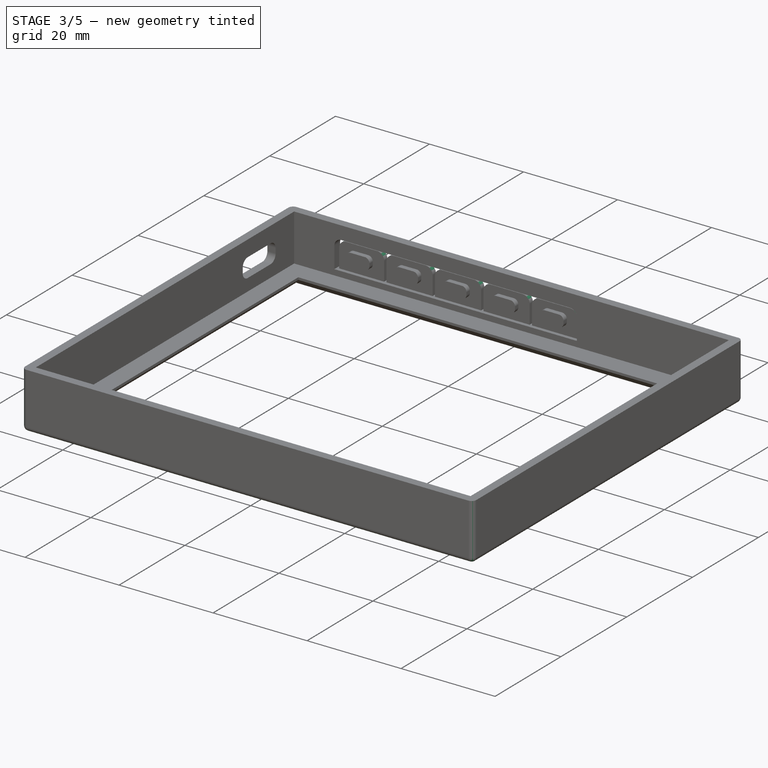
[diagram: stage 3 of 5 — iso view after this stage's code; geometry added in this stage tinted green]
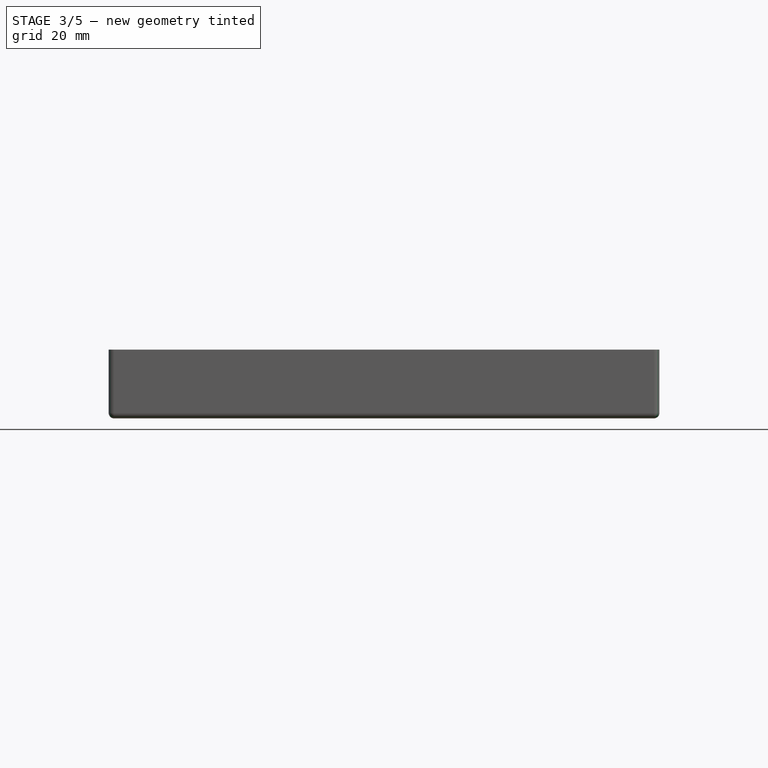
[diagram: stage 3 of 5 — front view after this stage's code; geometry added in this stage tinted green]
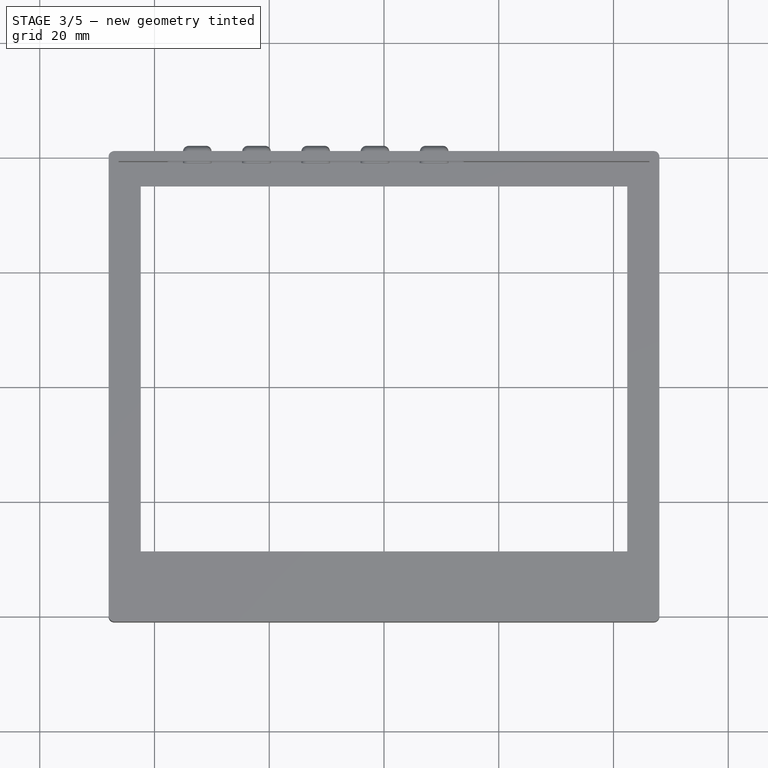
[diagram: stage 3 of 5 — top view after this stage's code; geometry added in this stage tinted green]
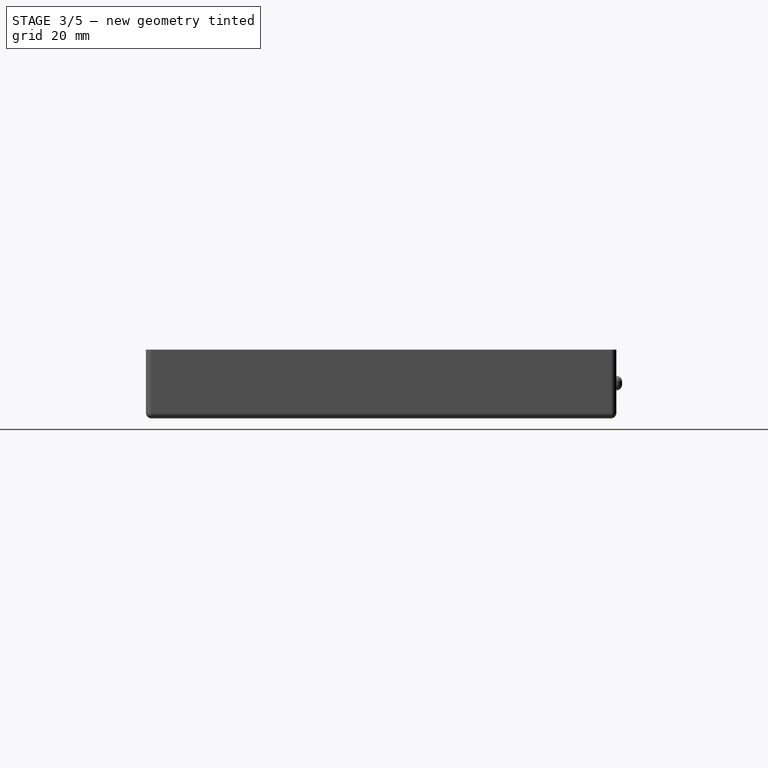
[diagram: stage 3 of 5 — right view after this stage's code; geometry added in this stage tinted green]
FEATURE [Part::MultiFuse] Fusion
  Shapes = -> [Chamfer,Fillet]
FEATURE [Part::Fillet] Fillet001
  Base = -> Fusion
  Edges = 8 edges r=1: [Edge24,Edge25,Edge26,Edge27,Edge45,Edge46,Edge48,Edge50]
FEATURE [Part::Cut] Cut001
  Base = -> Fillet001
  Tool = -> Extrude003
FEATURE [Part::Cut] Cut002
  Base = -> Cut001
  Tool = -> Extrude004
FEATURE [Part::Cut] Cut003
  Base = -> Cut002
  Tool = -> Extrude005
FEATURE [Part::Fillet] Fillet002
  Base = -> Cut003
  Edges = 12 edges r=1.5: [Edge139,Edge141,Edge148,Edge150,Edge157,Edge159,Edge166,Edge168,Edge175,Edge177,Edge183,Edge185]
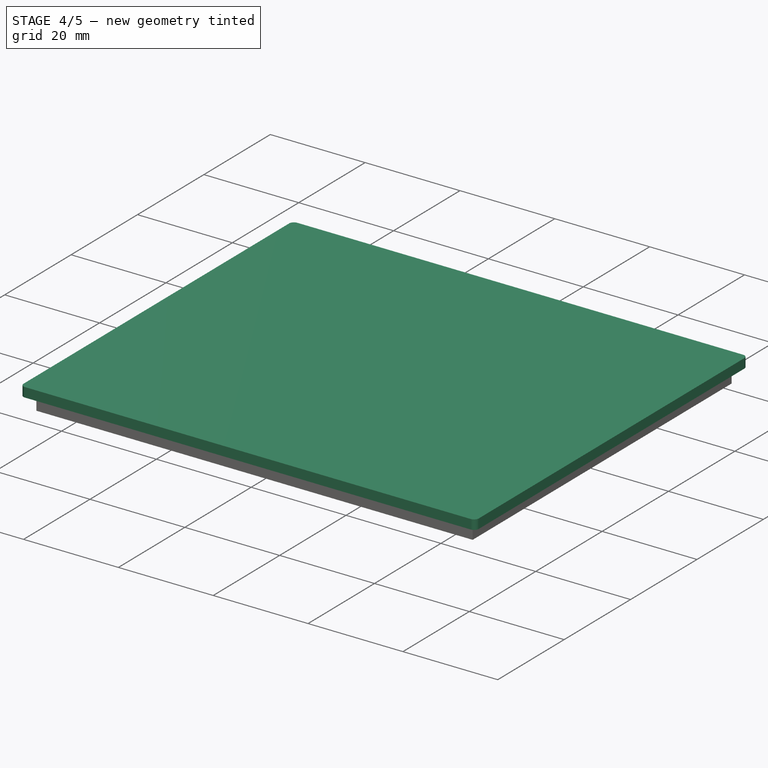
[diagram: stage 4 of 5 — iso view after this stage's code; geometry added in this stage tinted green]
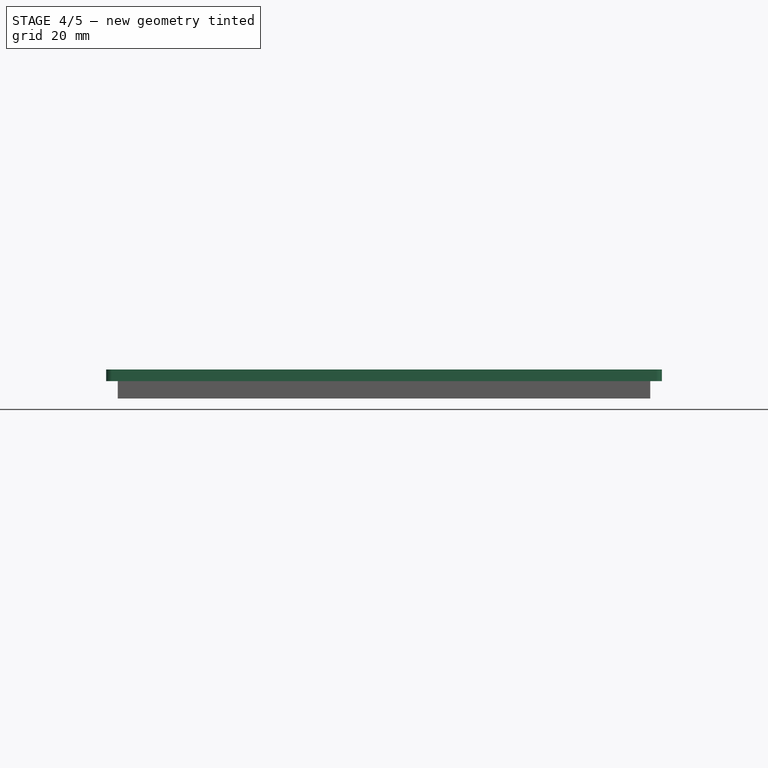
[diagram: stage 4 of 5 — front view after this stage's code; geometry added in this stage tinted green]
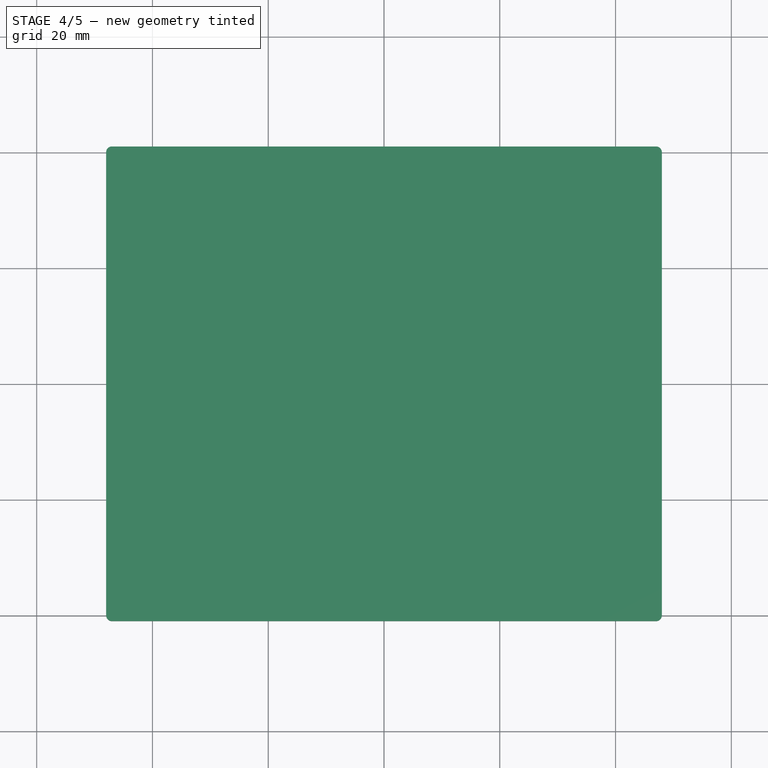
[diagram: stage 4 of 5 — top view after this stage's code; geometry added in this stage tinted green]
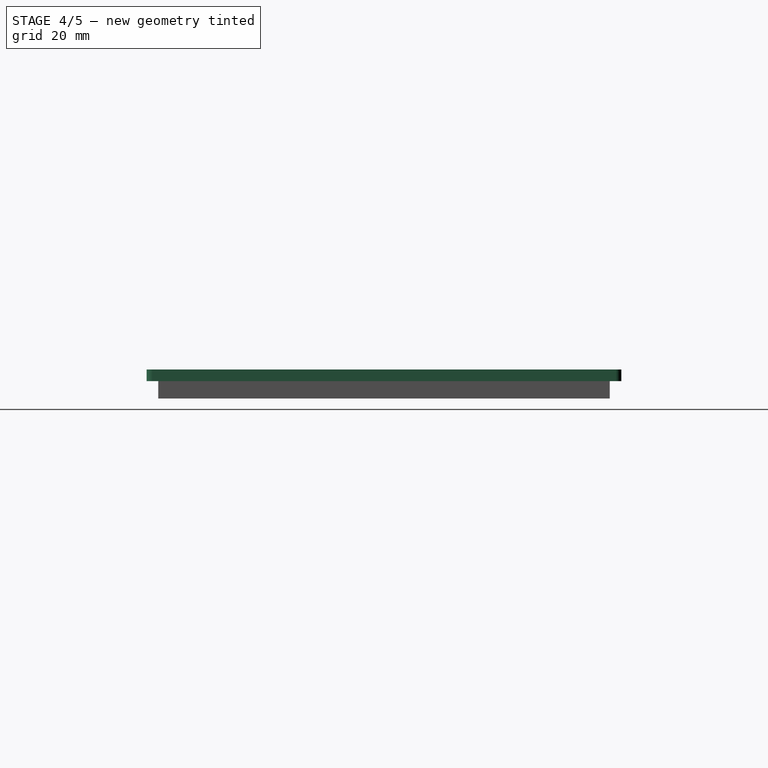
[diagram: stage 4 of 5 — right view after this stage's code; geometry added in this stage tinted green]
FEATURE [Part::MultiFuse] Fusion001  label="shell"
  Shapes = -> [Fillet002,Fillet003]
FEATURE [Sketcher::SketchObject] Sketch007
  MapMode = 5
  Placement = pos=(0,0,10) rot=(0,0,1;0rad)
  Support = -> [Fusion001]
  sketch-geometry (10):
    g0: LineSegment StartX=-46 StartY=39 StartZ=0 EndX=46 EndY=39 EndZ=0
    g1: LineSegment StartX=46 StartY=39 StartZ=0 EndX=46 EndY=-39 EndZ=0
    g2: LineSegment StartX=46 StartY=-39 StartZ=0 EndX=-46 EndY=-39 EndZ=0
    g3: LineSegment StartX=-46 StartY=-39 StartZ=0 EndX=-46 EndY=39 EndZ=0
    g4: LineSegment [constr] StartX=46 StartY=39 StartZ=0 EndX=-46 EndY=-39 EndZ=0
    g5: LineSegment [constr] StartX=-46 StartY=39 StartZ=0 EndX=46 EndY=-39 EndZ=0
    g6: LineSegment StartX=-44 StartY=37 StartZ=0 EndX=44 EndY=37 EndZ=0
    g7: LineSegment StartX=44 StartY=37 StartZ=0 EndX=44 EndY=-37 EndZ=0
    g8: LineSegment StartX=44 StartY=-37 StartZ=0 EndX=-44 EndY=-37 EndZ=0
    g9: LineSegment StartX=-44 StartY=-37 StartZ=0 EndX=-44 EndY=37 EndZ=0
  constraints (28):
    c: Coincident(g0,g1)
    c: Coincident(g1,g2)
    c: Coincident(g2,g3)
    c: Coincident(g3,g0)
    c: Horizontal(g0)
    c: Horizontal(g2)
    c: Vertical(g1)
    c: Vertical(g3)
    c: Coincident(g5,g0)
    c: Coincident(g5,g1)
    c: Coincident(g4,g0)
    c: Coincident(g4,g2)
    c: PointOnObject(g-1,g5)
    c: PointOnObject(g-1,g4)
    c: Distance(g0) = 92
    c: Distance(g3) = 78
    c: Coincident(g6,g7)
    c: Coincident(g7,g8)
    c: Coincident(g8,g9)
    c: Coincident(g9,g6)
    c: Horizontal(g6)
    c: Horizontal(g8)
    c: Vertical(g7)
    c: Vertical(g9)
    c: DistanceX(g0,g6) = 2
    c: DistanceX(g7,g1) = 2
    c: DistanceY(g6,g0) = 2
    c: DistanceY(g1,g7) = 2
FEATURE [Sketcher::SketchObject] Sketch008
  MapMode = 5
  Placement = pos=(0,0,10) rot=(0,0,1;0rad)
  Support = -> [Fusion001]
  sketch-geometry (10):
    g0: LineSegment [constr] StartX=-46 StartY=39 StartZ=0 EndX=46 EndY=39 EndZ=0
    g1: LineSegment [constr] StartX=46 StartY=39 StartZ=0 EndX=46 EndY=-39 EndZ=0
    g2: LineSegment [constr] StartX=46 StartY=-39 StartZ=0 EndX=-46 EndY=-39 EndZ=0
    g3: LineSegment [constr] StartX=-46 StartY=-39 StartZ=0 EndX=-46 EndY=39 EndZ=0
    g4: LineSegment [constr] StartX=46 StartY=39 StartZ=0 EndX=-46 EndY=-39 EndZ=0
    g5: LineSegment [constr] StartX=-46 StartY=39 StartZ=0 EndX=46 EndY=-39 EndZ=0
    g6: LineSegment StartX=-48 StartY=41 StartZ=0 EndX=48 EndY=41 EndZ=0
    g7: LineSegment StartX=48 StartY=41 StartZ=0 EndX=48 EndY=-41 EndZ=0
    g8: LineSegment StartX=48 StartY=-41 StartZ=0 EndX=-48 EndY=-41 EndZ=0
    g9: LineSegment StartX=-48 StartY=-41 StartZ=0 EndX=-48 EndY=41 EndZ=0
  constraints (28):
    c: Coincident(g0,g1)
    c: Coincident(g1,g2)
    c: Coincident(g2,g3)
    c: Coincident(g3,g0)
    c: Horizontal(g0)
    c: Horizontal(g2)
    c: Vertical(g1)
    c: Vertical(g3)
    c: Coincident(g5,g0)
    c: Coincident(g5,g1)
    c: Coincident(g4,g0)
    c: Coincident(g4,g2)
    c: PointOnObject(g-1,g5)
    c: PointOnObject(g-1,g4)
    c: Distance(g0) = 92
    c: Distance(g3) = 78
    c: Coincident(g6,g7)
    c: Coincident(g7,g8)
    c: Coincident(g8,g9)
    c: Coincident(g9,g6)
    c: Horizontal(g6)
    c: Horizontal(g8)
    c: Vertical(g7)
    c: Vertical(g9)
    c: DistanceX(g6,g0) = 2
    c: DistanceX(g1,g7) = 2
    c: DistanceY(g0,g6) = 2
    c: DistanceY(g7,g1) = 2
FEATURE [Part::Extrusion] Extrude008
  Base = -> Sketch007
  Dir = (0,0,1)
  DirMode = 2
  FaceMakerClass = Part::FaceMakerBullseye
  LengthFwd = -3
  LengthRev = 0
  Solid = true
  Symmetric = false
FEATURE [Part::Extrusion] Extrude009
  Base = -> Sketch008
  Dir = (0,0,1)
  DirMode = 2
  FaceMakerClass = Part::FaceMakerBullseye
  LengthFwd = 2
  LengthRev = 0
  Solid = true
  Symmetric = false
FEATURE [Part::Fillet] Fillet004
  Base = -> Extrude009
  Edges = 4 edges r=1: [Edge1,Edge2,Edge5,Edge8]
FEATURE [Part::MultiFuse] Fusion002  label="under"
  Shapes = -> [Extrude008,Fillet004]
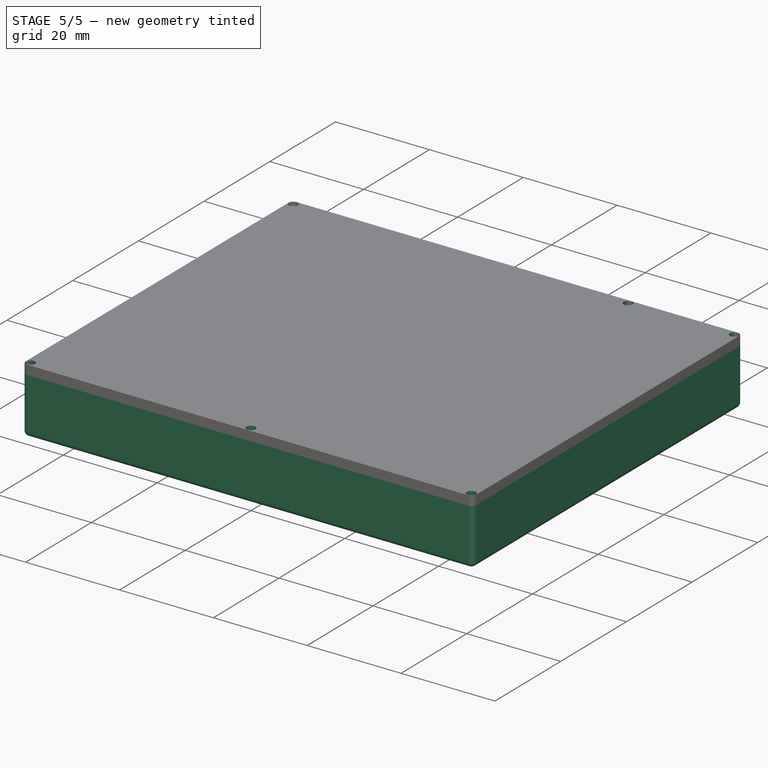
[diagram: stage 5 of 5 — iso view after this stage's code; geometry added in this stage tinted green]
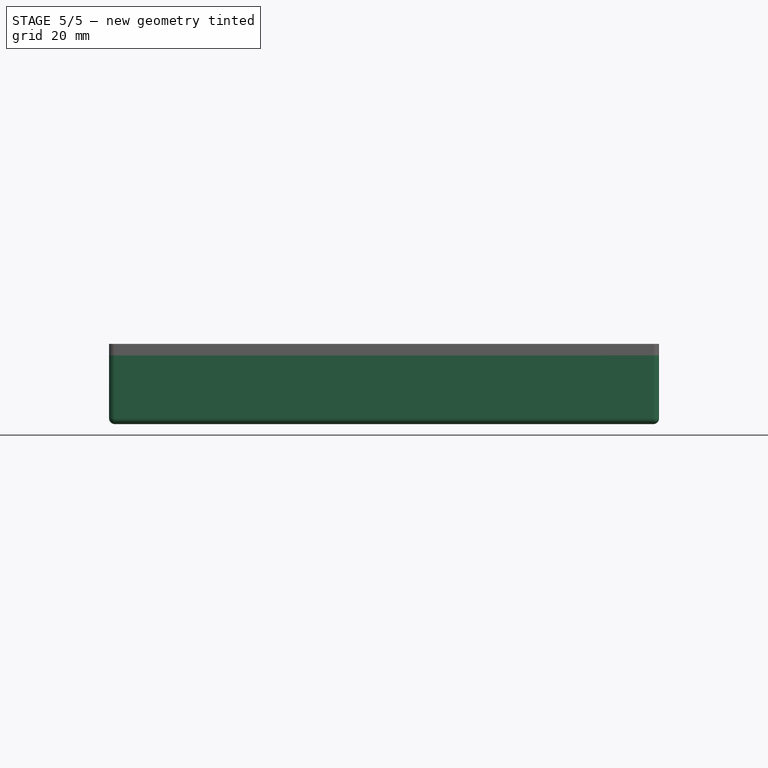
[diagram: stage 5 of 5 — front view after this stage's code; geometry added in this stage tinted green]
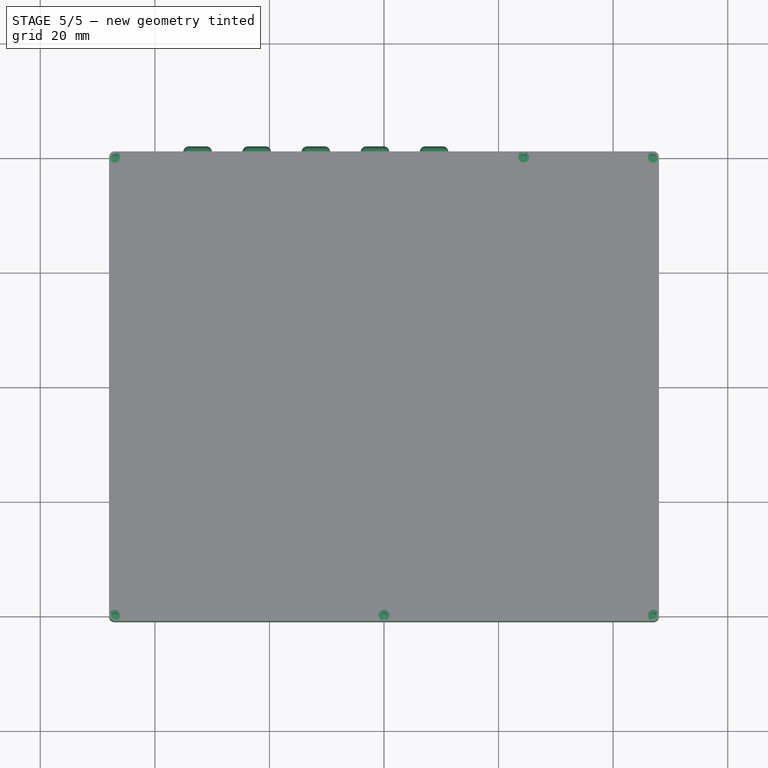
[diagram: stage 5 of 5 — top view after this stage's code; geometry added in this stage tinted green]
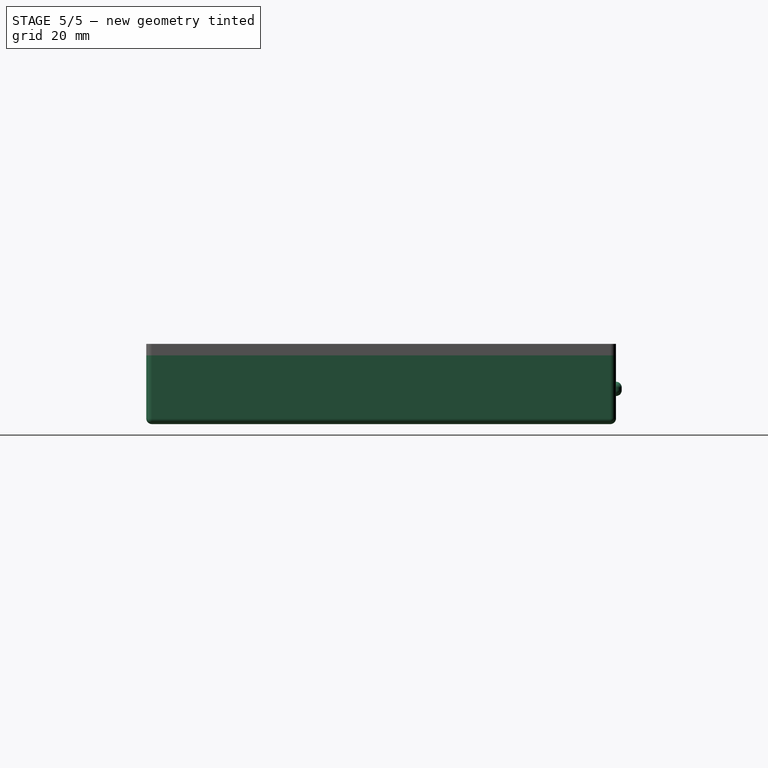
[diagram: stage 5 of 5 — right view after this stage's code; geometry added in this stage tinted green]
FEATURE [Sketcher::SketchObject] Sketch009  label="hole"
  MapMode = 5
  Placement = pos=(0,0,12) rot=(0,0,1;0rad)
  Support = -> [Fusion002]
  sketch-geometry (12):
    g0: LineSegment [constr] StartX=-46.25 StartY=39.25 StartZ=0 EndX=46.25 EndY=39.25 EndZ=0
    g1: LineSegment [constr] StartX=46.25 StartY=39.25 StartZ=0 EndX=46.25 EndY=-39.25 EndZ=0
    g2: LineSegment [constr] StartX=46.25 StartY=-39.25 StartZ=0 EndX=-46.25 EndY=-39.25 EndZ=0
    g3: LineSegment [constr] StartX=-46.25 StartY=-39.25 StartZ=0 EndX=-46.25 EndY=39.25 EndZ=0
    g4: LineSegment [constr] StartX=-46.25 StartY=39.25 StartZ=0 EndX=46.25 EndY=-39.25 EndZ=0
    g5: LineSegment [constr] StartX=-46.25 StartY=-39.25 StartZ=0 EndX=46.25 EndY=39.25 EndZ=0
    g6: Circle CenterX=24.37 CenterY=40 CenterZ=0 NormalX=0 NormalY=0 NormalZ=1 AngleXU=0 Radius=0.5
    g7: Circle CenterX=0 CenterY=-40 CenterZ=0 NormalX=0 NormalY=0 NormalZ=1 AngleXU=0 Radius=0.5
    g8: Circle CenterX=47 CenterY=-40 CenterZ=0 NormalX=0 NormalY=0 NormalZ=1 AngleXU=0 Radius=0.5
    g9: Circle CenterX=-47 CenterY=-40 CenterZ=0 NormalX=0 NormalY=0 NormalZ=1 AngleXU=0 Radius=0.5
    g10: Circle CenterX=-47 CenterY=40 CenterZ=0 NormalX=0 NormalY=0 NormalZ=1 AngleXU=0 Radius=0.5
    g11: Circle CenterX=47 CenterY=40 CenterZ=0 NormalX=0 NormalY=0 NormalZ=1 AngleXU=0 Radius=0.5
  constraints (34):
    c: Coincident(g0,g1)
    c: Coincident(g1,g2)
    c: Coincident(g2,g3)
    c: Coincident(g3,g0)
    c: Horizontal(g0)
    c: Horizontal(g2)
    c: Vertical(g1)
    c: Vertical(g3)
    c: Coincident(g4,g0)
    c: Coincident(g4,g1)
    c: Coincident(g5,g0)
    c: Coincident(g5,g2)
    c: PointOnObject(g-1,g4)
    c: PointOnObject(g-1,g5)
    c: Distance(g0) = 92.5
    c: Distance(g3) = 78.5
    c: Radius(g6) = 0.5
    c: Equal(g6,g7) = 0.5
    c: Equal(g6,g8) = 0.5
    c: Equal(g6,g9) = 0.5
    c: Equal(g6,g10) = 0.5
    c: Equal(g6,g11) = 0.5
    c: DistanceX(g0,g11) = 0.75
    c: DistanceY(g0,g11) = 0.75
    c: DistanceY(g0,g10) = 0.75
    c: DistanceX(g10,g0) = 0.75
    c: DistanceX(g9,g2) = 0.75
    c: DistanceY(g9,g2) = 0.75
    c: DistanceY(g8,g1) = 0.75
    c: DistanceX(g1,g8) = 0.75
    c: PointOnObject(g7,g-2)
    c: DistanceY(g7,g1) = 0.75
    c: DistanceY(g0,g6) = 0.75
    c: DistanceX(g6,g0) = 21.88
FEATURE [Sketcher::SketchObject] Sketch010  label="holeout"
  MapMode = 5
  Placement = pos=(0,0,12) rot=(0,0,1;0rad)
  Support = -> [Fusion002]
  expr: Constraints[16] = 1.9 / 2
  sketch-geometry (12):
    g0: LineSegment [constr] StartX=-46.25 StartY=39.25 StartZ=0 EndX=46.25 EndY=39.25 EndZ=0
    g1: LineSegment [constr] StartX=46.25 StartY=39.25 StartZ=0 EndX=46.25 EndY=-39.25 EndZ=0
    g2: LineSegment [constr] StartX=46.25 StartY=-39.25 StartZ=0 EndX=-46.25 EndY=-39.25 EndZ=0
    g3: LineSegment [constr] StartX=-46.25 StartY=-39.25 StartZ=0 EndX=-46.25 EndY=39.25 EndZ=0
    g4: LineSegment [constr] StartX=-46.25 StartY=39.25 StartZ=0 EndX=46.25 EndY=-39.25 EndZ=0
    g5: LineSegment [constr] StartX=-46.25 StartY=-39.25 StartZ=0 EndX=46.25 EndY=39.25 EndZ=0
    g6: Circle CenterX=24.37 CenterY=40 CenterZ=0 NormalX=0 NormalY=0 NormalZ=1 AngleXU=0 Radius=0.95
    g7: Circle CenterX=0 CenterY=-40 CenterZ=0 NormalX=0 NormalY=0 NormalZ=1 AngleXU=0 Radius=0.95
    g8: Circle CenterX=47 CenterY=-40 CenterZ=0 NormalX=0 NormalY=0 NormalZ=1 AngleXU=0 Radius=0.95
    g9: Circle CenterX=-47 CenterY=-40 CenterZ=0 NormalX=0 NormalY=0 NormalZ=1 AngleXU=0 Radius=0.95
    g10: Circle CenterX=-47 CenterY=40 CenterZ=0 NormalX=0 NormalY=0 NormalZ=1 AngleXU=0 Radius=0.95
    g11: Circle CenterX=47 CenterY=40 CenterZ=0 NormalX=0 NormalY=0 NormalZ=1 AngleXU=0 Radius=0.95
  constraints (34):
    c: Coincident(g0,g1)
    c: Coincident(g1,g2)
    c: Coincident(g2,g3)
    c: Coincident(g3,g0)
    c: Horizontal(g0)
    c: Horizontal(g2)
    c: Vertical(g1)
    c: Vertical(g3)
    c: Coincident(g4,g0)
    c: Coincident(g4,g1)
    c: Coincident(g5,g0)
    c: Coincident(g5,g2)
    c: PointOnObject(g-1,g4)
    c: PointOnObject(g-1,g5)
    c: Distance(g0) = 92.5
    c: Distance(g3) = 78.5
    c: Radius(g6) = 0.95
    c: Equal(g6,g7) = 0.5
    c: Equal(g6,g8) = 0.5
    c: Equal(g6,g9) = 0.5
    c: Equal(g6,g10) = 0.5
    c: Equal(g6,g11) = 0.5
    c: DistanceX(g0,g11) = 0.75
    c: DistanceY(g0,g11) = 0.75
    c: DistanceY(g0,g10) = 0.75
    c: DistanceX(g10,g0) = 0.75
    c: DistanceX(g9,g2) = 0.75
    c: DistanceY(g9,g2) = 0.75
    c: DistanceY(g8,g1) = 0.75
    c: DistanceX(g1,g8) = 0.75
    c: PointOnObject(g7,g-2)
    c: DistanceY(g7,g1) = 0.75
    c: DistanceY(g0,g6) = 0.75
    c: DistanceX(g6,g0) = 21.88
FEATURE [Part::Extrusion] Extrude010
  Base = -> Sketch010
  Dir = (0,0,1)
  DirMode = 2
  FaceMakerClass = Part::FaceMakerBullseye
  LengthFwd = -0.8
  LengthRev = 0
  Solid = true
  Symmetric = false
FEATURE [Part::Extrusion] Extrude011
  Base = -> Sketch009
  Dir = (0,0,1)
  DirMode = 2
  FaceMakerClass = Part::FaceMakerBullseye
  LengthFwd = -8
  LengthRev = 0
  Solid = true
  Symmetric = false
FEATURE [Part::MultiFuse] Fusion003
  Shapes = -> [Extrude010,Extrude011]
FEATURE [Part::MultiFuse] Fusion004
  Shapes = -> [Extrude010,Extrude011]
FEATURE [Part::Cut] Cut004  label="under001"
  Base = -> Fusion002
  Tool = -> Fusion004
FEATURE [Part::Cut] Cut005  label="font001"
  Base = -> Fusion001
  Tool = -> Fusion003
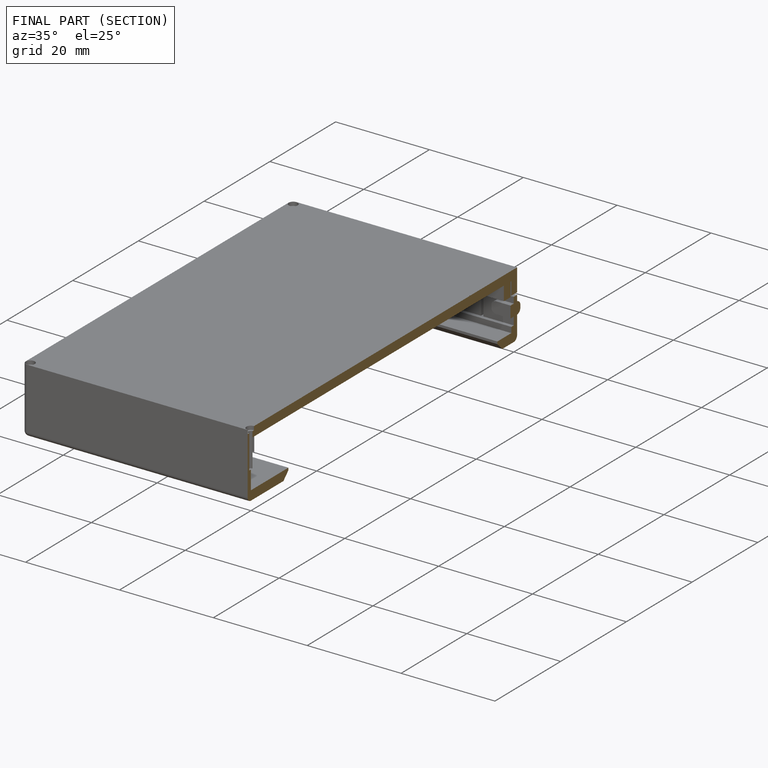
[diagram: finished part — half-section view (interior)]
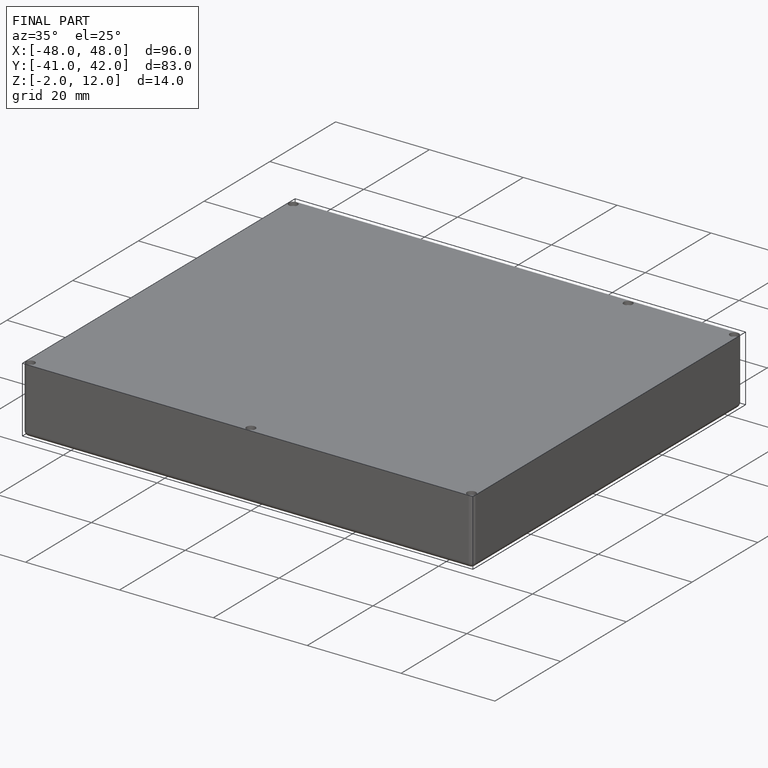
[diagram: finished part — iso view with bounding-box wireframe]
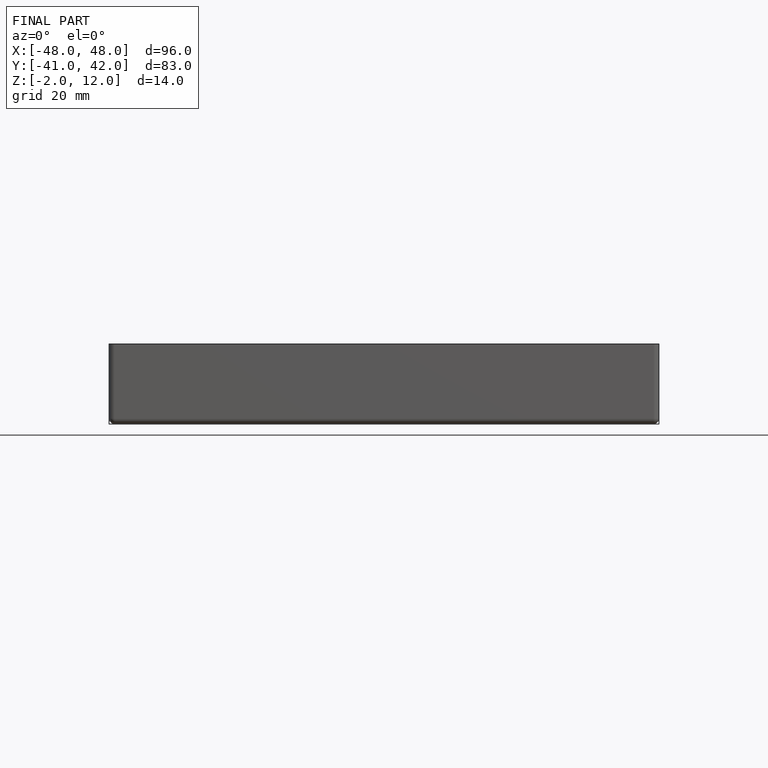
[diagram: finished part — front view with bounding-box wireframe]
